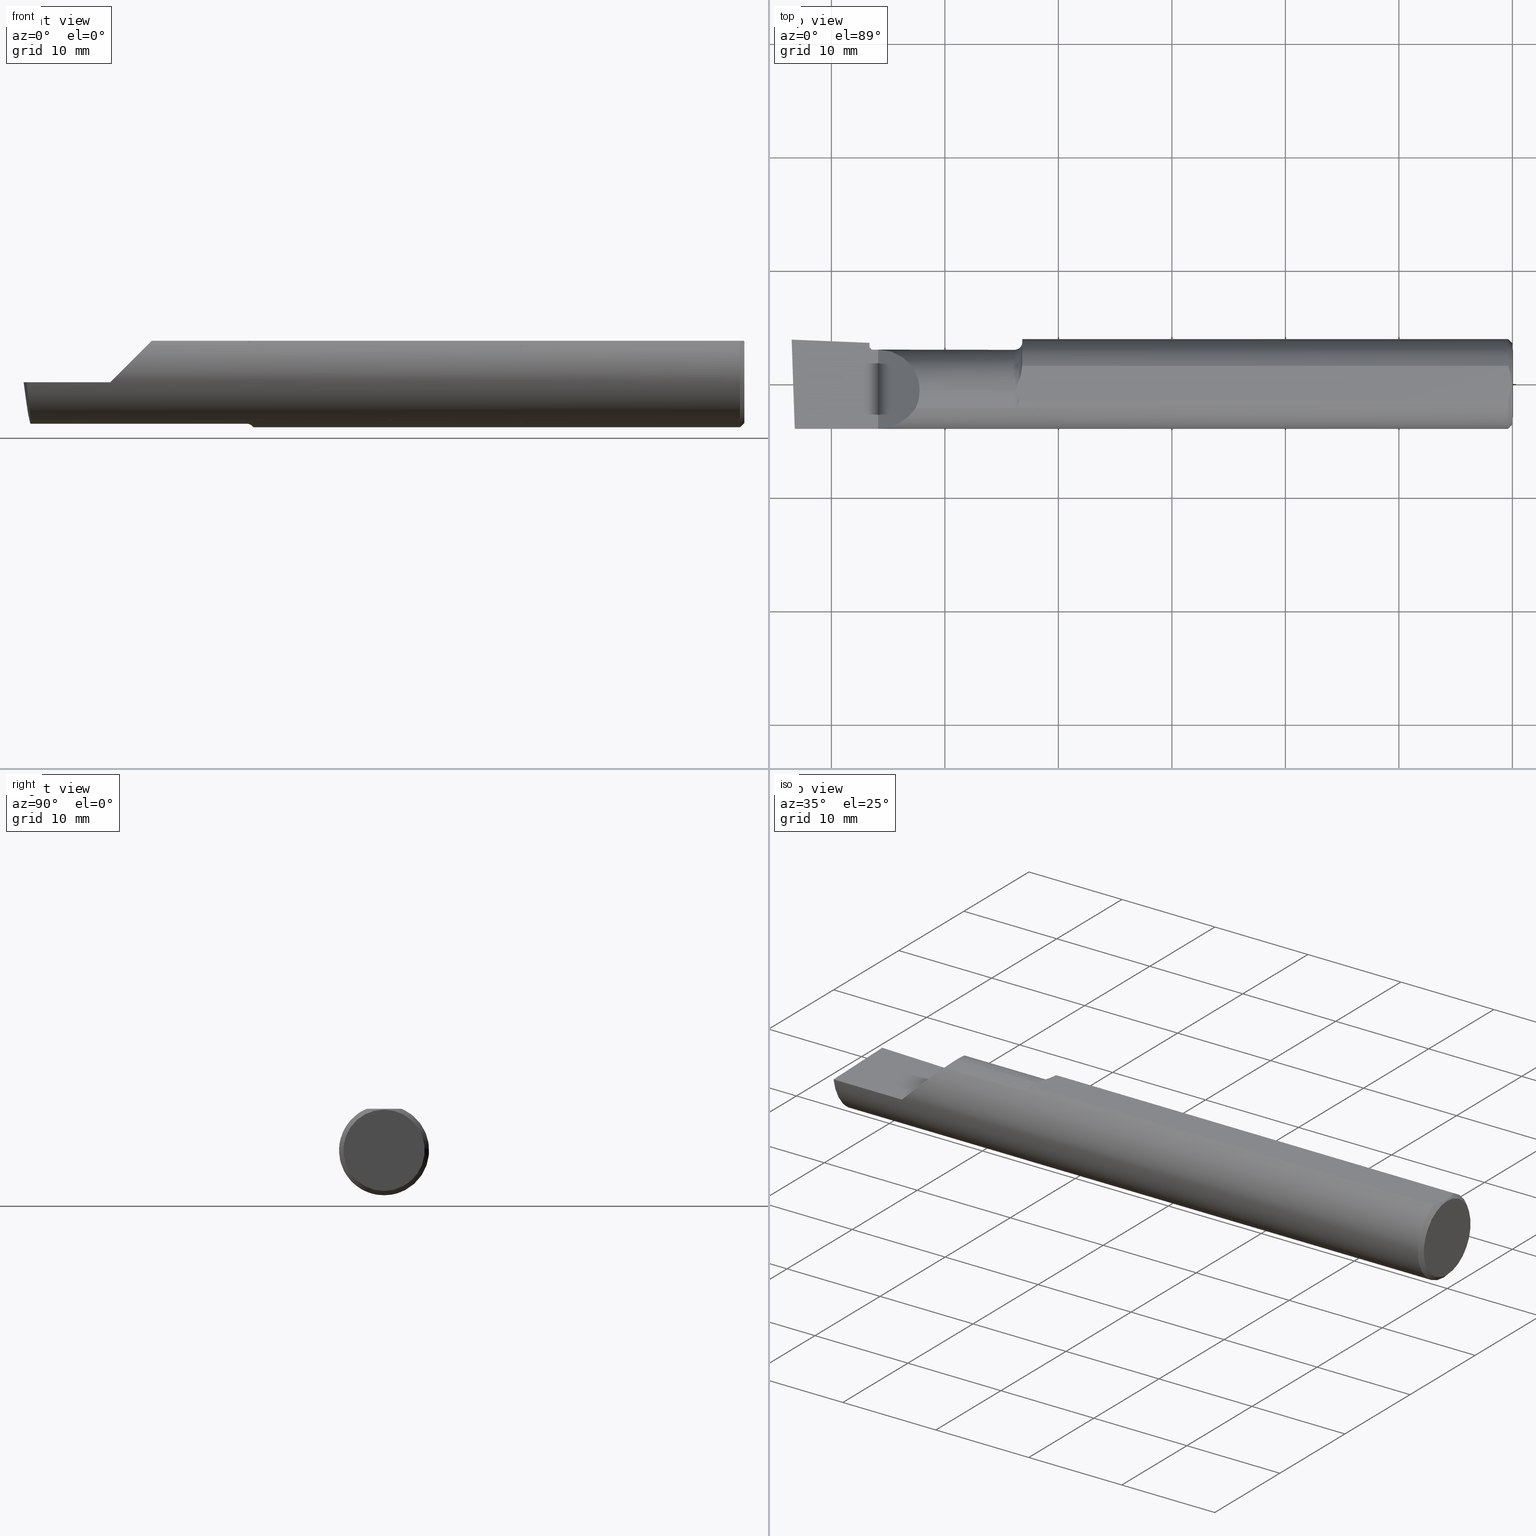
[diagram: canonical four-view strip — front | top / right | iso, engineering-drawing reading convention]
A machine part, canonical four-view strip (front | top / right | iso — engineering-drawing reading convention). The complete STEP part file that produces these views, byte-faithful:
ISO-10303-21;
HEADER;
FILE_DESCRIPTION (( 'STEP AP203' ),
    '1' );
FILE_NAME ('210489-LHBB316L.STEP',
    '2024-09-03T19:17:21',
    ( '' ),
    ( '' ),
    'SwSTEP 2.0',
    'SolidWorks 2024',
    '' );
FILE_SCHEMA (( 'CONFIG_CONTROL_DESIGN' ));
ENDSEC;

DATA;
#1 = DATE_AND_TIME ( #520, #705 ) ;
#2 = CARTESIAN_POINT ( 'NONE',  ( -2.229814999632692363, 0.07017856946061026835, -0.1184930152355837263 ) ) ;
#3 = CARTESIAN_POINT ( 'NONE',  ( -4.695363739110452099E-17, 4.170320745720392440E-32, 0.1411000000000002530 ) ) ;
#4 = VERTEX_POINT ( 'NONE', #36 ) ;
#5 = AXIS2_PLACEMENT_3D ( 'NONE', #95, #143, #653 ) ;
#6 = CARTESIAN_POINT ( 'NONE',  ( -2.229999999999999538, 0.1026580227690539332, -0.08595719412995682374 ) ) ;
#7 = CARTESIAN_POINT ( 'NONE',  ( -1.704862523376329708, -0.02500000000022616076, -0.1540850739039595629 ) ) ;
#8 = CARTESIAN_POINT ( 'NONE',  ( 0.000000000000000000, -0.02500000000000002220, -0.1439000000000001389 ) ) ;
#9 = EDGE_LOOP ( 'NONE', ( #416, #685, #96, #122, #537 ) ) ;
#10 = CARTESIAN_POINT ( 'NONE',  ( -0.01500000000000024925, 0.000000000000000000, -0.1560999999999999888 ) ) ;
#11 = CARTESIAN_POINT ( 'NONE',  ( -2.069528853764518228, -0.08569999999999516893, 0.1304711462354827267 ) ) ;
#12 = PRODUCT_DEFINITION_SHAPE ( 'NONE', 'NONE',  #269 ) ;
#13 = ORIENTED_EDGE ( 'NONE', *, *, #453, .T. ) ;
#14 = ADVANCED_FACE ( 'NONE', ( #506 ), #729, .T. ) ;
#15 = CC_DESIGN_PERSON_AND_ORGANIZATION_ASSIGNMENT ( #45, #41, ( #289 ) ) ;
#16 = CARTESIAN_POINT ( 'NONE',  ( -0.003000000000000204760, 6.421145895685612357E-21, 0.1440999999999999504 ) ) ;
#17 = ORIENTED_EDGE ( 'NONE', *, *, #600, .F. ) ;
#18 = EDGE_CURVE ( 'NONE', #655, #733, #139, .T. ) ;
#19 = DIRECTION ( 'NONE',  ( 0.000000000000000000, 0.000000000000000000, 1.000000000000000000 ) ) ;
#20 = AXIS2_PLACEMENT_3D ( 'NONE', #137, #357, #582 ) ;
#21 = LINE ( 'NONE', #700, #54 ) ;
#22 = ORIENTED_EDGE ( 'NONE', *, *, #450, .F. ) ;
#23 = EDGE_CURVE ( 'NONE', #527, #398, #717, .T. ) ;
#24 = DIRECTION ( 'NONE',  ( 0.000000000000000000, -1.707404996040168702E-16, -1.000000000000000000 ) ) ;
#25 = DIRECTION ( 'NONE',  ( 0.000000000000000000, 0.000000000000000000, 1.000000000000000000 ) ) ;
#26 = ORIENTED_EDGE ( 'NONE', *, *, #743, .T. ) ;
#27 =( BOUNDED_CURVE ( )  B_SPLINE_CURVE ( 3, ( #280, #514, #738, #221 ),
 .UNSPECIFIED., .F., .F. ) 
 B_SPLINE_CURVE_WITH_KNOTS ( ( 4, 4 ),
 ( 6.122674497807371274, 6.558126988897922338 ),
 .UNSPECIFIED. ) 
 CURVE ( )  GEOMETRIC_REPRESENTATION_ITEM ( )  RATIONAL_B_SPLINE_CURVE ( ( 1.000000000000000000, 0.9842607512044747597, 0.9842607512044747597, 1.000000000000000000 ) ) 
 REPRESENTATION_ITEM ( '' )  );
#28 = LINE ( 'NONE', #200, #279 ) ;
#29 = ORIENTED_EDGE ( 'NONE', *, *, #374, .T. ) ;
#30 = LINE ( 'NONE', #507, #392 ) ;
#31 = ORIENTED_EDGE ( 'NONE', *, *, #453, .F. ) ;
#32 = CARTESIAN_POINT ( 'NONE',  ( -1.724999999999999867, -0.02500000000000000486, 0.1689000000000000778 ) ) ;
#33 = EDGE_LOOP ( 'NONE', ( #430, #257, #158, #631, #135 ) ) ;
#34 = PERSON_AND_ORGANIZATION_ROLE ( 'design_owner' ) ;
#35 = CARTESIAN_POINT ( 'NONE',  ( -2.489315288308734164, 0.1256128547571745691, -0.07906752438118763715 ) ) ;
#36 = CARTESIAN_POINT ( 'NONE',  ( -1.724999999999999867, -0.08569999999999909635, -0.1304711462354805340 ) ) ;
#37 = CONICAL_SURFACE ( 'NONE', #97, 0.1410999999999997534, 0.7853981633974471688 ) ;
#38 = CARTESIAN_POINT ( 'NONE',  ( -1.700977043369841013, 0.02442086657637513106, -0.1542995754677715381 ) ) ;
#39 = CARTESIAN_POINT ( 'NONE',  ( -9.678837909573454915E-17, 0.2776584335525523750, -0.1560999999999999888 ) ) ;
#40 = ORIENTED_EDGE ( 'NONE', *, *, #146, .F. ) ;
#41 = PERSON_AND_ORGANIZATION_ROLE ( 'design_supplier' ) ;
#42 = CARTESIAN_POINT ( 'NONE',  ( -2.489266190342419360, -0.1561000000000000165, 3.826894855694925850E-18 ) ) ;
#43 = EDGE_CURVE ( 'NONE', #142, #148, #119, .T. ) ;
#44 = ORIENTED_EDGE ( 'NONE', *, *, #49, .F. ) ;
#45 = PERSON_AND_ORGANIZATION ( #165, #276 ) ;
#46 = LINE ( 'NONE', #679, #307 ) ;
#47 = CARTESIAN_POINT ( 'NONE',  ( -2.227833546180562951, 0.05470044517252301008, -0.1241265917587201367 ) ) ;
#48 = AXIS2_PLACEMENT_3D ( 'NONE', #113, #342, #351 ) ;
#49 = EDGE_CURVE ( 'NONE', #713, #398, #379, .T. ) ;
#50 = AXIS2_PLACEMENT_3D ( 'NONE', #739, #684, #281 ) ;
#51 = COORDINATED_UNIVERSAL_TIME_OFFSET ( 8, 0, .BEHIND. ) ;
#52 = CARTESIAN_POINT ( 'NONE',  ( -1.719201185154609846, -0.03693468910894936313, 0.1440999999999999226 ) ) ;
#53 = CARTESIAN_POINT ( 'NONE',  ( 0.000000000000000000, -0.02500000000000000486, 0.000000000000000000 ) ) ;
#54 = VECTOR ( 'NONE', #364, 39.37007874015748143 ) ;
#55 = CC_DESIGN_APPROVAL ( #338, ( #289 ) ) ;
#56 = CARTESIAN_POINT ( 'NONE',  ( 0.000000000000000000, -0.02500000000000000486, 0.1439000000000001389 ) ) ;
#57 = CARTESIAN_POINT ( 'NONE',  ( -0.008307085287356189701, 0.04068523568973313881, 0.1441000000000000059 ) ) ;
#58 = CARTESIAN_POINT ( 'NONE',  ( -1.700050504025077069, 0.06001999666777736026, 0.1440999999999999504 ) ) ;
#59 = DIRECTION ( 'NONE',  ( 1.000000000000000000, -0.000000000000000000, -0.000000000000000000 ) ) ;
#60 = CARTESIAN_POINT ( 'NONE',  ( -1.703095797791018606, -0.008405471570478818127, -0.1561000000000260235 ) ) ;
#61 = CARTESIAN_POINT ( 'NONE',  ( -2.229814999632692363, 0.07017856946061026835, -0.1184930152355837263 ) ) ;
#62 = FACE_OUTER_BOUND ( 'NONE', #579, .T. ) ;
#63 = DIRECTION ( 'NONE',  ( 0.000000000000000000, 0.000000000000000000, 1.000000000000000000 ) ) ;
#64 = ADVANCED_FACE ( 'NONE', ( #169 ), #515, .T. ) ;
#65 = VERTEX_POINT ( 'NONE', #3 ) ;
#66 = DIRECTION ( 'NONE',  ( 1.000000000000000000, -0.000000000000000000, -0.000000000000000000 ) ) ;
#67 = ADVANCED_FACE ( 'NONE', ( #352 ), #230, .T. ) ;
#68 = CARTESIAN_POINT ( 'NONE',  ( -2.477743596163800799, -0.1305938407426046888, -0.1009826174484544509 ) ) ;
#69 = ORIENTED_EDGE ( 'NONE', *, *, #374, .F. ) ;
#70 = ADVANCED_FACE ( 'NONE', ( #578 ), #681, .T. ) ;
#71 = VECTOR ( 'NONE', #466, 39.37007874015748143 ) ;
#72 = DIRECTION ( 'NONE',  ( 0.000000000000000000, 0.000000000000000000, 1.000000000000000000 ) ) ;
#73 = CARTESIAN_POINT ( 'NONE',  ( -2.056100000000001149, -0.04605394310600462171, 0.1439000000000001389 ) ) ;
#74 = ORIENTED_EDGE ( 'NONE', *, *, #513, .T. ) ;
#75 = DIRECTION ( 'NONE',  ( 1.000000000000000000, -0.000000000000000000, -0.000000000000000000 ) ) ;
#76 = CARTESIAN_POINT ( 'NONE',  ( -2.482667168175673122, -0.1560999999999999888, -0.05371247775559880727 ) ) ;
#77 = AXIS2_PLACEMENT_3D ( 'NONE', #92, #613, #370 ) ;
#78 = ORIENTED_EDGE ( 'NONE', *, *, #243, .F. ) ;
#79 = CALENDAR_DATE ( 2024, 3, 9 ) ;
#80 = EDGE_CURVE ( 'NONE', #131, #334, #188, .T. ) ;
#81 = CARTESIAN_POINT ( 'NONE',  ( -2.484581445594568727, 0.09576735185321454125, -0.1091794601134913889 ) ) ;
#82 = VERTEX_POINT ( 'NONE', #512 ) ;
#83 = CARTESIAN_POINT ( 'NONE',  ( -1.700348850910508025, 0.04224677410306604958, -0.1503974671975660815 ) ) ;
#84 = CARTESIAN_POINT ( 'NONE',  ( -1.716062054560814065, -0.07627963852233772546, -0.1362221433799753467 ) ) ;
#85 = CLOSED_SHELL ( 'NONE', ( #472, #607, #454, #693, #707, #67, #155, #265, #481, #70, #624, #530, #102, #181, #720, #719, #636, #14, #64, #395 ) ) ;
#86 = ORIENTED_EDGE ( 'NONE', *, *, #159, .F. ) ;
#87 = DATE_AND_TIME ( #670, #486 ) ;
#88 = AXIS2_PLACEMENT_3D ( 'NONE', #249, #63, #704 ) ;
#89 = DIRECTION ( 'NONE',  ( 0.000000000000000000, 0.000000000000000000, 1.000000000000000000 ) ) ;
#90 = ORIENTED_EDGE ( 'NONE', *, *, #23, .T. ) ;
#91 = DIMENSIONAL_EXPONENTS ( 1.000000000000000000, 0.000000000000000000, 0.000000000000000000, 0.000000000000000000, 0.000000000000000000, 0.000000000000000000, 0.000000000000000000 ) ;
#92 = CARTESIAN_POINT ( 'NONE',  ( 0.000000000000000000, 0.000000000000000000, 0.000000000000000000 ) ) ;
#93 = CARTESIAN_POINT ( 'NONE',  ( -1.972499999999999698, -0.08569999999999904083, -0.1304711462354805618 ) ) ;
#94 = ORIENTED_EDGE ( 'NONE', *, *, #581, .F. ) ;
#95 = CARTESIAN_POINT ( 'NONE',  ( -2.199999999999999289, 0.1560999999999999888, 3.826894855694925850E-18 ) ) ;
#96 = ORIENTED_EDGE ( 'NONE', *, *, #206, .F. ) ;
#97 = AXIS2_PLACEMENT_3D ( 'NONE', #186, #417, #643 ) ;
#98 = B_SPLINE_CURVE_WITH_KNOTS ( 'NONE', 3,
 ( #130, #415, #529, #429 ),
 .UNSPECIFIED., .F., .F.,
 ( 4, 4 ),
 ( 0.01176971488481076342, 0.01863345644698705117 ),
 .UNSPECIFIED. ) ;
#99 = DIRECTION ( 'NONE',  ( 0.000000000000000000, 0.000000000000000000, 1.000000000000000000 ) ) ;
#100 = DIRECTION ( 'NONE',  ( -1.000000000000000000, 0.000000000000000000, 0.000000000000000000 ) ) ;
#101 = FACE_OUTER_BOUND ( 'NONE', #211, .T. ) ;
#102 = ADVANCED_FACE ( 'NONE', ( #688 ), #407, .F. ) ;
#103 = CARTESIAN_POINT ( 'NONE',  ( -2.229294457104739724, 0.06238674940841056060, -0.1213290058053428794 ) ) ;
#104 = PERSON_AND_ORGANIZATION_ROLE ( 'creator' ) ;
#105 = CARTESIAN_POINT ( 'NONE',  ( -2.500000000000000000, 0.000000000000000000, -0.1560999999999999888 ) ) ;
#106 = CARTESIAN_POINT ( 'NONE',  ( -4.695363739110451482E-17, -2.459287858768264152E-17, 0.000000000000000000 ) ) ;
#107 = VECTOR ( 'NONE', #255, 39.37007874015748143 ) ;
#108 = PERSON_AND_ORGANIZATION ( #165, #276 ) ;
#109 = CARTESIAN_POINT ( 'NONE',  ( -1.699999999999999956, 0.07070000000000060958, 0.1391715488165591041 ) ) ;
#110 = CARTESIAN_POINT ( 'NONE',  ( -1.716324726609743223, -0.07684337455390469196, 0.1359013108991526941 ) ) ;
#111 = CIRCLE ( 'NONE', #150, 0.1439000000000001389 ) ;
#112 = CC_DESIGN_APPROVAL ( #129, ( #269 ) ) ;
#113 = CARTESIAN_POINT ( 'NONE',  ( -2.229999999999999538, 0.1891210000000000946, 0.000000000000000000 ) ) ;
#114 = DIRECTION ( 'NONE',  ( 0.000000000000000000, 0.000000000000000000, 1.000000000000000000 ) ) ;
#115 = LINE ( 'NONE', #588, #428 ) ;
#116 = CARTESIAN_POINT ( 'NONE',  ( -2.229999999999999538, -0.02500000000000000486, 0.000000000000000000 ) ) ;
#117 = EDGE_LOOP ( 'NONE', ( #303, #533, #584, #595 ) ) ;
#118 = DIRECTION ( 'NONE',  ( 0.000000000000000000, 0.000000000000000000, 1.000000000000000000 ) ) ;
#119 = B_SPLINE_CURVE_WITH_KNOTS ( 'NONE', 3,
 ( #635, #397, #57, #452, #677, #571 ),
 .UNSPECIFIED., .F., .F.,
 ( 4, 2, 4 ),
 ( 0.003862504283746397583, 0.004641553971935389461, 0.005420603660124381773 ),
 .UNSPECIFIED. ) ;
#120 = EDGE_CURVE ( 'NONE', #527, #642, #547, .T. ) ;
#121 = PLANE ( 'NONE',  #632 ) ;
#122 = ORIENTED_EDGE ( 'NONE', *, *, #740, .F. ) ;
#123 = EDGE_CURVE ( 'NONE', #710, #306, #741, .T. ) ;
#124 = FACE_OUTER_BOUND ( 'NONE', #523, .T. ) ;
#125 = DIRECTION ( 'NONE',  ( 0.000000000000000000, 0.000000000000000000, 1.000000000000000000 ) ) ;
#126 = EDGE_CURVE ( 'NONE', #65, #187, #516, .T. ) ;
#127 = VERTEX_POINT ( 'NONE', #467 ) ;
#128 = CARTESIAN_POINT ( 'NONE',  ( -0.008316884378888314902, -0.04071872938164906863, 0.1440999999999999226 ) ) ;
#129 = APPROVAL ( #596, 'UNSPECIFIED' ) ;
#130 = CARTESIAN_POINT ( 'NONE',  ( -2.229999999999999538, 0.1425688816766004785, 0.000000000000000000 ) ) ;
#131 = VERTEX_POINT ( 'NONE', #691 ) ;
#132 = DIRECTION ( 'NONE',  ( 1.000000000000000000, -0.000000000000000000, -0.000000000000000000 ) ) ;
#133 = AXIS2_PLACEMENT_3D ( 'NONE', #189, #75, #118 ) ;
#134 = CARTESIAN_POINT ( 'NONE',  ( -0.01500000000000024925, -0.06001999666777732556, 0.1440999999999999781 ) ) ;
#135 = ORIENTED_EDGE ( 'NONE', *, *, #49, .T. ) ;
#136 = EDGE_CURVE ( 'NONE', #362, #642, #251, .T. ) ;
#137 = CARTESIAN_POINT ( 'NONE',  ( -4.695363739110451482E-17, -2.459287858768264152E-17, 0.000000000000000000 ) ) ;
#138 = ORIENTED_EDGE ( 'NONE', *, *, #43, .F. ) ;
#139 = B_SPLINE_CURVE_WITH_KNOTS ( 'NONE', 3,
 ( #674, #638, #220, #110, #459, #337, #174, #630, #518, #746 ),
 .UNSPECIFIED., .F., .F.,
 ( 4, 2, 2, 2, 4 ),
 ( 5.292347910183899821E-07, 0.0004247077115782289282, 0.0006367969499718310368, 0.0007428415691686376205, 0.0008488861883654442043 ),
 .UNSPECIFIED. ) ;
#140 = PLANE ( 'NONE',  #5 ) ;
#141 = CARTESIAN_POINT ( 'NONE',  ( -1.706230440715366337, -0.03646003586407838004, -0.1522257056384943574 ) ) ;
#142 = VERTEX_POINT ( 'NONE', #419 ) ;
#143 = DIRECTION ( 'NONE',  ( 0.7071067811865515695, 0.000000000000000000, -0.7071067811865434649 ) ) ;
#144 = VECTOR ( 'NONE', #335, 39.37007874015748143 ) ;
#145 = CARTESIAN_POINT ( 'NONE',  ( -1.707963511987623750, -0.04781653154435649977, -0.1490354188630819143 ) ) ;
#146 = EDGE_CURVE ( 'NONE', #187, #65, #420, .T. ) ;
#147 = CC_DESIGN_PERSON_AND_ORGANIZATION_ASSIGNMENT ( #172, #223, ( #669 ) ) ;
#148 = VERTEX_POINT ( 'NONE', #16 ) ;
#149 =( NAMED_UNIT ( * ) PLANE_ANGLE_UNIT ( ) SI_UNIT ( $, .RADIAN. ) );
#150 = AXIS2_PLACEMENT_3D ( 'NONE', #597, #644, #371 ) ;
#151 = CARTESIAN_POINT ( 'NONE',  ( -1.724999999999999867, -0.02500000000000000486, 0.000000000000000000 ) ) ;
#152 = ORIENTED_EDGE ( 'NONE', *, *, #513, .F. ) ;
#153 = LOCAL_TIME ( 12, 17, 21.00000000000000000, #457 ) ;
#154 = CARTESIAN_POINT ( 'NONE',  ( -2.229999999999999538, 0.1289000000000001256, 0.000000000000000000 ) ) ;
#155 = ADVANCED_FACE ( 'NONE', ( #305 ), #536, .T. ) ;
#156 = ORIENTED_EDGE ( 'NONE', *, *, #629, .F. ) ;
#157 = CARTESIAN_POINT ( 'NONE',  ( -2.099017382551543243, -0.1305938407426031900, 0.1009826174484572542 ) ) ;
#158 = ORIENTED_EDGE ( 'NONE', *, *, #136, .F. ) ;
#159 = EDGE_CURVE ( 'NONE', #427, #372, #359, .T. ) ;
#160 = LINE ( 'NONE', #285, #437 ) ;
#161 = DIRECTION ( 'NONE',  ( 1.000000000000000000, -0.000000000000000000, -0.000000000000000000 ) ) ;
#162 = B_SPLINE_CURVE_WITH_KNOTS ( 'NONE', 3,
 ( #300, #361, #426, #641 ),
 .UNSPECIFIED., .F., .F.,
 ( 4, 4 ),
 ( 0.0005609392357388221168, 0.007068866004979952253 ),
 .UNSPECIFIED. ) ;
#163 = PLANE ( 'NONE',  #48 ) ;
#164 = CARTESIAN_POINT ( 'NONE',  ( -1.699999999999999956, 0.000000000000000000, 0.000000000000000000 ) ) ;
#165 = PERSON ( 'UNSPECIFIED', 'UNSPECIFIED', 'UNSPECIFIED', ('UNSPECIFIED'), ('UNSPECIFIED'), ('UNSPECIFIED') ) ;
#166 = ORIENTED_EDGE ( 'NONE', *, *, #319, .T. ) ;
#167 = DATE_TIME_ROLE ( 'classification_date' ) ;
#168 = DIRECTION ( 'NONE',  ( 0.000000000000000000, 0.000000000000000000, -1.000000000000000000 ) ) ;
#169 = FACE_OUTER_BOUND ( 'NONE', #546, .T. ) ;
#170 = CIRCLE ( 'NONE', #698, 0.1439000000000001389 ) ;
#171 = ORIENTED_EDGE ( 'NONE', *, *, #740, .T. ) ;
#172 = PERSON_AND_ORGANIZATION ( #165, #276 ) ;
#173 = CYLINDRICAL_SURFACE ( 'NONE', #663, 0.1560999999999999888 ) ;
#174 = CARTESIAN_POINT ( 'NONE',  ( -1.720308733175471838, -0.08325729668116084448, 0.1320471792325039750 ) ) ;
#175 = MANIFOLD_SOLID_BREP ( 'Cut-Extrude1', #85 ) ;
#176 = ORIENTED_EDGE ( 'NONE', *, *, #126, .F. ) ;
#177 = LOCAL_TIME ( 12, 17, 21.00000000000000000, #340 ) ;
#178 = CARTESIAN_POINT ( 'NONE',  ( -2.056000000000000050, -0.1560999999999999888, 3.826894855694925850E-18 ) ) ;
#179 = DIRECTION ( 'NONE',  ( 1.000000000000000000, -0.000000000000000000, -0.000000000000000000 ) ) ;
#180 = ORIENTED_EDGE ( 'NONE', *, *, #583, .T. ) ;
#181 = ADVANCED_FACE ( 'NONE', ( #368 ), #423, .T. ) ;
#182 = CARTESIAN_POINT ( 'NONE',  ( -2.199999999999999289, -0.1560999999999999888, 3.826894855694925850E-18 ) ) ;
#183 = CARTESIAN_POINT ( 'NONE',  ( -2.476130359589496788, -0.02500000000000002220, -0.1439000000000001389 ) ) ;
#184 = ORIENTED_EDGE ( 'NONE', *, *, #185, .F. ) ;
#185 = EDGE_CURVE ( 'NONE', #227, #4, #111, .T. ) ;
#186 = CARTESIAN_POINT ( 'NONE',  ( 0.000000000000000000, 0.000000000000000000, 0.000000000000000000 ) ) ;
#187 = VERTEX_POINT ( 'NONE', #594 ) ;
#188 = CIRCLE ( 'NONE', #443, 0.1560999999999999888 ) ;
#189 = CARTESIAN_POINT ( 'NONE',  ( -1.724999999999999867, -0.02500000000000000486, 0.000000000000000000 ) ) ;
#190 = ORIENTED_EDGE ( 'NONE', *, *, #604, .T. ) ;
#191 = CARTESIAN_POINT ( 'NONE',  ( -1.702458313762935216, 4.839648990909927173E-13, -0.1560999999999999888 ) ) ;
#192 = CARTESIAN_POINT ( 'NONE',  ( -1.724999999999999867, -0.02500000000000000486, 0.000000000000000000 ) ) ;
#193 = ORIENTED_EDGE ( 'NONE', *, *, #336, .T. ) ;
#194 = DIRECTION ( 'NONE',  ( 1.000000000000000000, 0.000000000000000000, 0.000000000000000000 ) ) ;
#195 = AXIS2_PLACEMENT_3D ( 'NONE', #266, #555, #273 ) ;
#196 = CARTESIAN_POINT ( 'NONE',  ( -1.722162220462625237, -0.08489276752862805198, -0.1310023188550722140 ) ) ;
#197 = ORIENTED_EDGE ( 'NONE', *, *, #80, .T. ) ;
#198 = COORDINATED_UNIVERSAL_TIME_OFFSET ( 8, 0, .BEHIND. ) ;
#199 = B_SPLINE_CURVE_WITH_KNOTS ( 'NONE', 3,
 ( #545, #491, #196, #654, #662, #441, #84, #494, #375, #145, #141, #561 ),
 .UNSPECIFIED., .F., .F.,
 ( 4, 2, 2, 2, 2, 4 ),
 ( 1.966861314629960346E-07, 0.0001139043861855430702, 0.0002276120862396231379, 0.0004550274863477822974, 0.0009098582865640994239, 0.001819519886996738773 ),
 .UNSPECIFIED. ) ;
#200 = CARTESIAN_POINT ( 'NONE',  ( 0.000000000000000000, 1.727976633596912104E-17, -0.1410999999999997534 ) ) ;
#201 = ORIENTED_EDGE ( 'NONE', *, *, #311, .T. ) ;
#202 = EDGE_CURVE ( 'NONE', #733, #433, #541, .T. ) ;
#203 = CC_DESIGN_PERSON_AND_ORGANIZATION_ASSIGNMENT ( #346, #104, ( #289 ) ) ;
#204 = CARTESIAN_POINT ( 'NONE',  ( -2.476713598110543035, -0.008170903630063742693, -0.1439000000000001389 ) ) ;
#205 = ORIENTED_EDGE ( 'NONE', *, *, #242, .T. ) ;
#206 = EDGE_CURVE ( 'NONE', #376, #648, #98, .T. ) ;
#207 = CARTESIAN_POINT ( 'NONE',  ( -1.724999999999999867, -0.08569999999999887430, 0.1304711462354806450 ) ) ;
#208 = AXIS2_PLACEMENT_3D ( 'NONE', #291, #745, #623 ) ;
#209 = EDGE_CURVE ( 'NONE', #334, #131, #572, .T. ) ;
#210 = LINE ( 'NONE', #93, #312 ) ;
#211 = EDGE_LOOP ( 'NONE', ( #485, #618, #236, #510, #22, #489, #562, #667 ) ) ;
#212 = DATE_AND_TIME ( #79, #508 ) ;
#213 = VECTOR ( 'NONE', #239, 39.37007874015748143 ) ;
#214 = DIRECTION ( 'NONE',  ( -1.000000000000000000, -1.742939658942782065E-16, 0.000000000000000000 ) ) ;
#215 = CARTESIAN_POINT ( 'NONE',  ( -1.699999999999999956, 0.1439000000000000556, 0.000000000000000000 ) ) ;
#216 = CARTESIAN_POINT ( 'NONE',  ( -1.724999999999999867, -0.02500000000000000486, 0.1439000000000001389 ) ) ;
#217 = DIRECTION ( 'NONE',  ( 0.000000000000000000, 0.000000000000000000, -1.000000000000000000 ) ) ;
#218 = APPROVAL_STATUS ( 'not_yet_approved' ) ;
#219 = CARTESIAN_POINT ( 'NONE',  ( -2.499553225608604823, 0.1407279727905360600, 3.826894855694925850E-18 ) ) ;
#220 = CARTESIAN_POINT ( 'NONE',  ( -1.713486186723763405, -0.06993940022577664617, 0.1396536156489263103 ) ) ;
#221 = CARTESIAN_POINT ( 'NONE',  ( -2.476130359589496788, -0.02500000000000002220, -0.1439000000000001389 ) ) ;
#222 = CARTESIAN_POINT ( 'NONE',  ( -2.222129735053914867, 0.03180793362839330618, -0.1324587845483786164 ) ) ;
#223 = PERSON_AND_ORGANIZATION_ROLE ( 'classification_officer' ) ;
#224 = CARTESIAN_POINT ( 'NONE',  ( -1.721844053232386873, -0.02136326841098498339, 0.1440999999999999781 ) ) ;
#225 = APPLICATION_CONTEXT ( 'configuration controlled 3d designs of mechanical parts and assemblies' ) ;
#226 = CARTESIAN_POINT ( 'NONE',  ( -2.225157097429441677, 0.04322541840385416001, -0.1283031599399233891 ) ) ;
#227 = VERTEX_POINT ( 'NONE', #309 ) ;
#228 = SECURITY_CLASSIFICATION_LEVEL ( 'unclassified' ) ;
#229 = CARTESIAN_POINT ( 'NONE',  ( -1.718418672230967115, -0.01083899323585547220, 0.1440999999999999504 ) ) ;
#230 = CYLINDRICAL_SURFACE ( 'NONE', #609, 0.1560999999999999888 ) ;
#231 = ORIENTED_EDGE ( 'NONE', *, *, #480, .F. ) ;
#232 = TOROIDAL_SURFACE ( 'NONE', #133, 0.1689000000000000778, 0.02499999999999993894 ) ;
#233 =( BOUNDED_CURVE ( )  B_SPLINE_CURVE ( 3, ( #435, #157, #551, #388 ),
 .UNSPECIFIED., .F., .F. ) 
 B_SPLINE_CURVE_WITH_KNOTS ( ( 4, 4 ),
 ( 0.5811757715714180872, 1.570796326794896558 ),
 .UNSPECIFIED. ) 
 CURVE ( )  GEOMETRIC_REPRESENTATION_ITEM ( )  RATIONAL_B_SPLINE_CURVE ( ( 1.000000000000000000, 0.9200392120919920202, 0.9200392120919920202, 1.000000000000000000 ) ) 
 REPRESENTATION_ITEM ( '' )  );
#234 = CARTESIAN_POINT ( 'NONE',  ( -1.721036826405247133, -0.03107590170041930888, 0.1441000000000000059 ) ) ;
#235 = DIRECTION ( 'NONE',  ( 1.742939658942782065E-16, -1.000000000000000000, 0.000000000000000000 ) ) ;
#236 = ORIENTED_EDGE ( 'NONE', *, *, #418, .F. ) ;
#237 = B_SPLINE_CURVE_WITH_KNOTS ( 'NONE', 3,
 ( #715, #658, #267, #500, #724, #524, #229, #455, #224, #619 ),
 .UNSPECIFIED., .F., .F.,
 ( 4, 2, 2, 2, 4 ),
 ( 0.01301670781631844402, 0.01412932456335744096, 0.01468563293687693942, 0.01496378712363669213, 0.01524194131039644483 ),
 .UNSPECIFIED. ) ;
#238 = CARTESIAN_POINT ( 'NONE',  ( 0.000000000000000000, -0.02500000000000000486, 0.000000000000000000 ) ) ;
#239 = DIRECTION ( 'NONE',  ( 1.000000000000000000, -0.000000000000000000, -0.000000000000000000 ) ) ;
#240 = ORIENTED_EDGE ( 'NONE', *, *, #345, .F. ) ;
#241 = B_SPLINE_CURVE_WITH_KNOTS ( 'NONE', 3,
 ( #353, #474, #593, #128, #576, #363 ),
 .UNSPECIFIED., .F., .F.,
 ( 4, 2, 4 ),
 ( 0.005420603660124381773, 0.006200393792043773673, 0.006980183923963165574 ),
 .UNSPECIFIED. ) ;
#242 = EDGE_CURVE ( 'NONE', #412, #713, #21, .T. ) ;
#243 = EDGE_CURVE ( 'NONE', #527, #436, #162, .T. ) ;
#244 = DIRECTION ( 'NONE',  ( -0.7071067811865483499, 0.000000000000000000, 0.7071067811865467956 ) ) ;
#245 = CARTESIAN_POINT ( 'NONE',  ( -1.699999999999999956, -0.02500000000000000486, 0.000000000000000000 ) ) ;
#246 = ORIENTED_EDGE ( 'NONE', *, *, #564, .F. ) ;
#247 = TOROIDAL_SURFACE ( 'NONE', #208, 0.1689000000000000778, 0.02499999999999993894 ) ;
#248 = CARTESIAN_POINT ( 'NONE',  ( -1.710843495424060334, -0.06001999666777307202, 0.1440999999999999504 ) ) ;
#249 = CARTESIAN_POINT ( 'NONE',  ( -2.056000000000000050, 0.1560999999999999888, 3.826894855694925850E-18 ) ) ;
#250 = ORIENTED_EDGE ( 'NONE', *, *, #283, .F. ) ;
#251 = CIRCLE ( 'NONE', #286, 0.1539000000000001200 ) ;
#252 = DIRECTION ( 'NONE',  ( -0.000000000000000000, -0.000000000000000000, -1.000000000000000000 ) ) ;
#253 = DIRECTION ( 'NONE',  ( 0.000000000000000000, 0.000000000000000000, 1.000000000000000000 ) ) ;
#254 = ORIENTED_EDGE ( 'NONE', *, *, #686, .T. ) ;
#255 = DIRECTION ( 'NONE',  ( 1.000000000000000000, -0.000000000000000000, -0.000000000000000000 ) ) ;
#256 = DIRECTION ( 'NONE',  ( -1.000000000000000000, 0.000000000000000000, 0.000000000000000000 ) ) ;
#257 = ORIENTED_EDGE ( 'NONE', *, *, #120, .T. ) ;
#258 = AXIS2_PLACEMENT_3D ( 'NONE', #313, #528, #580 ) ;
#259 = CARTESIAN_POINT ( 'NONE',  ( -2.056100000000001149, -0.02500000000000000486, 0.1439000000000001389 ) ) ;
#260 = ORIENTED_EDGE ( 'NONE', *, *, #600, .T. ) ;
#261 = EDGE_CURVE ( 'NONE', #275, #227, #650, .T. ) ;
#262 = PERSON_AND_ORGANIZATION ( #165, #276 ) ;
#263 = FACE_OUTER_BOUND ( 'NONE', #706, .T. ) ;
#264 = ORIENTED_EDGE ( 'NONE', *, *, #418, .T. ) ;
#265 = ADVANCED_FACE ( 'NONE', ( #696 ), #121, .F. ) ;
#266 = CARTESIAN_POINT ( 'NONE',  ( -2.229999999999999538, -0.05609999999999996934, 0.04000000000000000083 ) ) ;
#267 = CARTESIAN_POINT ( 'NONE',  ( -1.704082834115631773, 0.03088512097720286578, 0.1440999999999999504 ) ) ;
#268 = VERTEX_POINT ( 'NONE', #488 ) ;
#269 = PRODUCT_DEFINITION ( 'UNKNOWN', '', #289, #440 ) ;
#270 = AXIS2_PLACEMENT_3D ( 'NONE', #695, #132, #72 ) ;
#271 = CARTESIAN_POINT ( 'NONE',  ( -2.115705331625488572, 0.1189000000000001445, 0.08429466837451166095 ) ) ;
#272 = ORIENTED_EDGE ( 'NONE', *, *, #503, .T. ) ;
#273 = DIRECTION ( 'NONE',  ( 0.000000000000000000, 0.000000000000000000, -1.000000000000000000 ) ) ;
#274 = CARTESIAN_POINT ( 'NONE',  ( -2.476130359589496788, -0.02500000000000002220, -0.1439000000000001389 ) ) ;
#275 = VERTEX_POINT ( 'NONE', #183 ) ;
#276 = ORGANIZATION ( 'UNSPECIFIED', 'UNSPECIFIED', '' ) ;
#277 = CARTESIAN_POINT ( 'NONE',  ( -1.721844053232375549, -0.02804753169359755494, 0.1440999999999999781 ) ) ;
#278 = ORIENTED_EDGE ( 'NONE', *, *, #261, .F. ) ;
#279 = VECTOR ( 'NONE', #556, 39.37007874015748143 ) ;
#280 = CARTESIAN_POINT ( 'NONE',  ( -2.475676552398977215, -0.08569999999999904083, -0.1304711462354805618 ) ) ;
#281 = DIRECTION ( 'NONE',  ( 0.000000000000000000, 0.000000000000000000, 1.000000000000000000 ) ) ;
#282 = AXIS2_PLACEMENT_3D ( 'NONE', #215, #100, #217 ) ;
#283 = EDGE_CURVE ( 'NONE', #498, #82, #591, .T. ) ;
#284 = APPROVAL_STATUS ( 'not_yet_approved' ) ;
#285 = CARTESIAN_POINT ( 'NONE',  ( -2.500000000000000000, 0.06001999666777736719, 0.1440999999999999504 ) ) ;
#286 = AXIS2_PLACEMENT_3D ( 'NONE', #116, #483, #125 ) ;
#287 = CARTESIAN_POINT ( 'NONE',  ( -2.219999999999999751, -0.02500000000000000486, 0.000000000000000000 ) ) ;
#288 = ORIENTED_EDGE ( 'NONE', *, *, #18, .T. ) ;
#289 = PRODUCT_DEFINITION_FORMATION_WITH_SPECIFIED_SOURCE ( 'ANY', '', #348, .NOT_KNOWN. ) ;
#290 = PERSON_AND_ORGANIZATION ( #165, #276 ) ;
#291 = CARTESIAN_POINT ( 'NONE',  ( -1.724999999999999867, -0.02500000000000000486, 0.000000000000000000 ) ) ;
#292 = CARTESIAN_POINT ( 'NONE',  ( -2.500000000000000000, 0.000000000000000000, 0.000000000000000000 ) ) ;
#293 = ORIENTED_EDGE ( 'NONE', *, *, #639, .T. ) ;
#294 = DATE_AND_TIME ( #737, #177 ) ;
#295 = CARTESIAN_POINT ( 'NONE',  ( -1.721844053232376881, -0.02500000000003146580, 0.1440999999999999504 ) ) ;
#296 = DIRECTION ( 'NONE',  ( 0.000000000000000000, 0.000000000000000000, 1.000000000000000000 ) ) ;
#297 = ORIENTED_EDGE ( 'NONE', *, *, #242, .F. ) ;
#298 = AXIS2_PLACEMENT_3D ( 'NONE', #238, #367, #414 ) ;
#299 = DIRECTION ( 'NONE',  ( 0.000000000000000000, 1.000000000000000000, 0.000000000000000000 ) ) ;
#300 = CARTESIAN_POINT ( 'NONE',  ( -2.229814999632692363, 0.07017856946061026835, -0.1184930152355837263 ) ) ;
#301 = CYLINDRICAL_SURFACE ( 'NONE', #493, 0.1439000000000001389 ) ;
#302 = DIRECTION ( 'NONE',  ( -1.000000000000000000, 0.000000000000000000, 0.000000000000000000 ) ) ;
#303 = ORIENTED_EDGE ( 'NONE', *, *, #581, .T. ) ;
#304 = FACE_OUTER_BOUND ( 'NONE', #549, .T. ) ;
#305 = FACE_OUTER_BOUND ( 'NONE', #645, .T. ) ;
#306 = VERTEX_POINT ( 'NONE', #134 ) ;
#307 = VECTOR ( 'NONE', #570, 39.37007874015748143 ) ;
#308 = CARTESIAN_POINT ( 'NONE',  ( -1.703876643924216117, -0.01674057265308589657, -0.1554251497364122214 ) ) ;
#309 = CARTESIAN_POINT ( 'NONE',  ( -1.724999999999999867, -0.02500000000000002220, -0.1439000000000001389 ) ) ;
#310 = ORIENTED_EDGE ( 'NONE', *, *, #324, .T. ) ;
#311 = EDGE_CURVE ( 'NONE', #4, #449, #199, .T. ) ;
#312 = VECTOR ( 'NONE', #328, 39.37007874015748143 ) ;
#313 = CARTESIAN_POINT ( 'NONE',  ( -0.01500000000000024925, 0.000000000000000000, 0.000000000000000000 ) ) ;
#314 = CC_DESIGN_APPROVAL ( #626, ( #669 ) ) ;
#315 =( BOUNDED_CURVE ( )  B_SPLINE_CURVE ( 3, ( #274, #204, #446, #509 ),
 .UNSPECIFIED., .F., .F. ) 
 B_SPLINE_CURVE_WITH_KNOTS ( ( 4, 4 ),
 ( 0.2749416817183363837, 0.6240075321171965061 ),
 .UNSPECIFIED. ) 
 CURVE ( )  GEOMETRIC_REPRESENTATION_ITEM ( )  RATIONAL_B_SPLINE_CURVE ( ( 1.000000000000000000, 0.9898718353414723836, 0.9898718353414723836, 1.000000000000000000 ) ) 
 REPRESENTATION_ITEM ( '' )  );
#316 = CARTESIAN_POINT ( 'NONE',  ( -2.475676552398977215, -0.08569999999999904083, -0.1304711462354805618 ) ) ;
#317 = ORIENTED_EDGE ( 'NONE', *, *, #18, .F. ) ;
#318 = CARTESIAN_POINT ( 'NONE',  ( -2.069528853764518228, -0.08569999999999516893, 0.1304711462354827267 ) ) ;
#319 = EDGE_CURVE ( 'NONE', #82, #4, #210, .T. ) ;
#320 = EDGE_LOOP ( 'NONE', ( #40, #29, #389, #421, #465 ) ) ;
#321 = MECHANICAL_CONTEXT ( 'NONE', #225, 'mechanical' ) ;
#322 = CARTESIAN_POINT ( 'NONE',  ( -2.500000000000000000, 0.1536194554637218546, 0.000000000000000000 ) ) ;
#323 = ORIENTED_EDGE ( 'NONE', *, *, #480, .T. ) ;
#324 = EDGE_CURVE ( 'NONE', #733, #372, #380, .T. ) ;
#325 = CARTESIAN_POINT ( 'NONE',  ( -1.700730260234562419, 0.03041887409375968257, -0.1532281963622442178 ) ) ;
#326 = CARTESIAN_POINT ( 'NONE',  ( -2.478902233428061486, 0.02421669862456291358, -0.1352217681310924902 ) ) ;
#327 = ORIENTED_EDGE ( 'NONE', *, *, #583, .F. ) ;
#328 = DIRECTION ( 'NONE',  ( 1.000000000000000000, -0.000000000000000000, -0.000000000000000000 ) ) ;
#329 = ORIENTED_EDGE ( 'NONE', *, *, #209, .F. ) ;
#330 = LENGTH_MEASURE_WITH_UNIT ( LENGTH_MEASURE( 0.02539999999999999897 ), #439 );
#331 = CARTESIAN_POINT ( 'NONE',  ( -2.229999999999999538, 0.1425688816766004785, 0.000000000000000000 ) ) ;
#332 = ORIENTED_EDGE ( 'NONE', *, *, #450, .T. ) ;
#333 = FACE_OUTER_BOUND ( 'NONE', #612, .T. ) ;
#334 = VERTEX_POINT ( 'NONE', #728 ) ;
#335 = DIRECTION ( 'NONE',  ( 0.03463576215158579996, -0.9994000019912840926, 0.000000000000000000 ) ) ;
#336 = EDGE_CURVE ( 'NONE', #412, #427, #413, .T. ) ;
#337 = CARTESIAN_POINT ( 'NONE',  ( -1.719508261956889772, -0.08224208440130439945, 0.1326837206089799548 ) ) ;
#338 = APPROVAL ( #218, 'UNSPECIFIED' ) ;
#339 = ADVANCED_BREP_SHAPE_REPRESENTATION ( '210489-LHBB316L', ( #175, #77 ), #384 ) ;
#340 = COORDINATED_UNIVERSAL_TIME_OFFSET ( 8, 0, .BEHIND. ) ;
#341 = VECTOR ( 'NONE', #406, 39.37007874015748143 ) ;
#342 = DIRECTION ( 'NONE',  ( 1.000000000000000000, 0.000000000000000000, -0.000000000000000000 ) ) ;
#343 = EDGE_CURVE ( 'NONE', #436, #648, #718, .T. ) ;
#344 = DIRECTION ( 'NONE',  ( 1.000000000000000000, 1.742939658942782065E-16, 0.000000000000000000 ) ) ;
#345 = EDGE_CURVE ( 'NONE', #372, #652, #233, .T. ) ;
#346 = PERSON_AND_ORGANIZATION ( #165, #276 ) ;
#347 = CARTESIAN_POINT ( 'NONE',  ( -1.700016018626790748, 0.06364538733738628329, 0.1425899657466627168 ) ) ;
#348 = PRODUCT ( '210489-LHBB316L', '210489-LHBB316L', '', ( #321 ) ) ;
#349 = AXIS2_PLACEMENT_3D ( 'NONE', #106, #344, #235 ) ;
#350 = CARTESIAN_POINT ( 'NONE',  ( -2.224174734775641760, 0.03941084190547441274, -0.1296915522416650091 ) ) ;
#351 = DIRECTION ( 'NONE',  ( 0.000000000000000000, 0.000000000000000000, 1.000000000000000000 ) ) ;
#352 = FACE_OUTER_BOUND ( 'NONE', #355, .T. ) ;
#353 = CARTESIAN_POINT ( 'NONE',  ( -0.003000000000000204760, 6.421145895685612357E-21, 0.1440999999999999504 ) ) ;
#354 = CARTESIAN_POINT ( 'NONE',  ( -2.219999999999999751, 0.02421669862456291358, -0.1352217681310924902 ) ) ;
#355 = EDGE_LOOP ( 'NONE', ( #201, #254, #272, #692, #180, #288, #310, #552, #13, #664, #166 ) ) ;
#356 = DIRECTION ( 'NONE',  ( 0.000000000000000000, 1.000000000000000000, 0.000000000000000000 ) ) ;
#357 = DIRECTION ( 'NONE',  ( 1.000000000000000000, 1.742939658942782065E-16, 0.000000000000000000 ) ) ;
#358 = EDGE_LOOP ( 'NONE', ( #565, #171, #468 ) ) ;
#359 =( BOUNDED_CURVE ( )  B_SPLINE_CURVE ( 3, ( #532, #73, #712, #11 ),
 .UNSPECIFIED., .F., .F. ) 
 B_SPLINE_CURVE_WITH_KNOTS ( ( 4, 4 ),
 ( 0.000000000000000000, 0.4354524910905208102 ),
 .UNSPECIFIED. ) 
 CURVE ( )  GEOMETRIC_REPRESENTATION_ITEM ( )  RATIONAL_B_SPLINE_CURVE ( ( 1.000000000000000000, 0.9842607512044769802, 0.9842607512044769802, 1.000000000000000000 ) ) 
 REPRESENTATION_ITEM ( '' )  );
#360 = LINE ( 'NONE', #711, #366 ) ;
#361 = CARTESIAN_POINT ( 'NONE',  ( -2.314562659517192422, 0.08023483548401062759, -0.1148328337352035183 ) ) ;
#362 = VERTEX_POINT ( 'NONE', #154 ) ;
#363 = CARTESIAN_POINT ( 'NONE',  ( -0.01500000000000024925, -0.06001999666777732556, 0.1440999999999999781 ) ) ;
#364 = DIRECTION ( 'NONE',  ( -1.000000000000000000, 0.000000000000000000, 0.000000000000000000 ) ) ;
#365 = ORIENTED_EDGE ( 'NONE', *, *, #324, .F. ) ;
#366 = VECTOR ( 'NONE', #244, 39.37007874015748143 ) ;
#367 = DIRECTION ( 'NONE',  ( 1.000000000000000000, -0.000000000000000000, -0.000000000000000000 ) ) ;
#368 = FACE_OUTER_BOUND ( 'NONE', #722, .T. ) ;
#369 = EDGE_LOOP ( 'NONE', ( #17, #747, #365, #606 ) ) ;
#370 = DIRECTION ( 'NONE',  ( 1.000000000000000000, 0.000000000000000000, 0.000000000000000000 ) ) ;
#371 = DIRECTION ( 'NONE',  ( 0.000000000000000000, 0.000000000000000000, 1.000000000000000000 ) ) ;
#372 = VERTEX_POINT ( 'NONE', #318 ) ;
#373 = APPROVAL_DATE_TIME ( #212, #129 ) ;
#374 = EDGE_CURVE ( 'NONE', #187, #710, #28, .T. ) ;
#375 = CARTESIAN_POINT ( 'NONE',  ( -1.711707069840809448, -0.06372296352525391727, -0.1426158673174761915 ) ) ;
#376 = VERTEX_POINT ( 'NONE', #331 ) ;
#377 = CIRCLE ( 'NONE', #475, 0.02499999999999993894 ) ;
#378 =( NAMED_UNIT ( * ) SI_UNIT ( $, .STERADIAN. ) SOLID_ANGLE_UNIT ( ) );
#379 = CIRCLE ( 'NONE', #50, 0.1439000000000001389 ) ;
#380 = LINE ( 'NONE', #548, #694 ) ;
#381 = ORIENTED_EDGE ( 'NONE', *, *, #202, .F. ) ;
#382 = AXIS2_PLACEMENT_3D ( 'NONE', #287, #59, #620 ) ;
#383 = APPLICATION_CONTEXT ( 'configuration controlled 3d designs of mechanical parts and assemblies' ) ;
#384 =( GEOMETRIC_REPRESENTATION_CONTEXT ( 3 ) GLOBAL_UNCERTAINTY_ASSIGNED_CONTEXT ( ( #723 ) ) GLOBAL_UNIT_ASSIGNED_CONTEXT ( ( #499, #149, #378 ) ) REPRESENTATION_CONTEXT ( 'NONE', 'WORKASPACE' ) );
#385 = CARTESIAN_POINT ( 'NONE',  ( -1.704862523376329708, -0.02500000000022616076, -0.1540850739039595629 ) ) ;
#386 = ORIENTED_EDGE ( 'NONE', *, *, #80, .F. ) ;
#387 = DATE_TIME_ROLE ( 'creation_date' ) ;
#388 = CARTESIAN_POINT ( 'NONE',  ( -2.199999999999999289, -0.1560999999999999888, 3.826894855694925850E-18 ) ) ;
#389 = ORIENTED_EDGE ( 'NONE', *, *, #656, .F. ) ;
#390 = CALENDAR_DATE ( 2024, 3, 9 ) ;
#391 = DIRECTION ( 'NONE',  ( 0.000000000000000000, 0.000000000000000000, 1.000000000000000000 ) ) ;
#392 = VECTOR ( 'NONE', #194, 39.37007874015748143 ) ;
#393 = ORIENTED_EDGE ( 'NONE', *, *, #629, .T. ) ;
#394 = APPROVAL_DATE_TIME ( #569, #626 ) ;
#395 = ADVANCED_FACE ( 'NONE', ( #263 ), #497, .F. ) ;
#396 = FACE_OUTER_BOUND ( 'NONE', #320, .T. ) ;
#397 = CARTESIAN_POINT ( 'NONE',  ( -0.01132650618349836762, 0.05046597439866586793, 0.1440999999999999781 ) ) ;
#398 = VERTEX_POINT ( 'NONE', #448 ) ;
#399 = EDGE_CURVE ( 'NONE', #275, #424, #315, .T. ) ;
#400 = CARTESIAN_POINT ( 'NONE',  ( -2.229999999999999094, 0.09307971088234003043, -0.09802981822343342921 ) ) ;
#401 = SHAPE_DEFINITION_REPRESENTATION ( #12, #339 ) ;
#402 = DIRECTION ( 'NONE',  ( 0.07437990725530781166, -0.9370896517296887218, -0.3410727400684822053 ) ) ;
#403 = DIRECTION ( 'NONE',  ( -0.1219414168599299575, 0.000000000000000000, 0.9925372994775525370 ) ) ;
#404 = ORIENTED_EDGE ( 'NONE', *, *, #682, .T. ) ;
#405 = APPROVAL_DATE_TIME ( #1, #338 ) ;
#406 = DIRECTION ( 'NONE',  ( 1.000000000000000000, -0.000000000000000000, -0.000000000000000000 ) ) ;
#407 = TOROIDAL_SURFACE ( 'NONE', #382, 0.1539000000000001200, 0.009999999999999944697 ) ;
#408 = CARTESIAN_POINT ( 'NONE',  ( -2.406957976829792401, 0.1568685545078939703, -0.7582283612889448854 ) ) ;
#409 = ORIENTED_EDGE ( 'NONE', *, *, #336, .F. ) ;
#410 = FACE_OUTER_BOUND ( 'NONE', #9, .T. ) ;
#411 = CARTESIAN_POINT ( 'NONE',  ( -2.229814999632692363, 0.07017856946061026835, -0.1184930152355837263 ) ) ;
#412 = VERTEX_POINT ( 'NONE', #732 ) ;
#413 =( BOUNDED_CURVE ( )  B_SPLINE_CURVE ( 3, ( #611, #271, #505, #432 ),
 .UNSPECIFIED., .F., .T. ) 
 B_SPLINE_CURVE_WITH_KNOTS ( ( 4, 4 ),
 ( 4.712388980384689674, 6.283185307179586232 ),
 .UNSPECIFIED. ) 
 CURVE ( )  GEOMETRIC_REPRESENTATION_ITEM ( )  RATIONAL_B_SPLINE_CURVE ( ( 1.000000000000000000, 0.8047378541243649375, 0.8047378541243649375, 1.000000000000000000 ) ) 
 REPRESENTATION_ITEM ( '' )  );
#414 = DIRECTION ( 'NONE',  ( 0.000000000000000000, 0.000000000000000000, 1.000000000000000000 ) ) ;
#415 = CARTESIAN_POINT ( 'NONE',  ( -2.319999845125628735, 0.1462561883915259875, 3.826894855694925850E-18 ) ) ;
#416 = ORIENTED_EDGE ( 'NONE', *, *, #243, .T. ) ;
#417 = DIRECTION ( 'NONE',  ( -1.000000000000000000, 0.000000000000000000, 0.000000000000000000 ) ) ;
#418 = EDGE_CURVE ( 'NONE', #433, #227, #170, .T. ) ;
#419 = CARTESIAN_POINT ( 'NONE',  ( -0.01500000000000023884, 0.06001999666777732556, 0.1440999999999999504 ) ) ;
#420 = CIRCLE ( 'NONE', #20, 0.1411000000000002530 ) ;
#421 = ORIENTED_EDGE ( 'NONE', *, *, #43, .T. ) ;
#422 = DIRECTION ( 'NONE',  ( 0.000000000000000000, 1.000000000000000000, 0.000000000000000000 ) ) ;
#423 = PLANE ( 'NONE',  #484 ) ;
#424 = VERTEX_POINT ( 'NONE', #326 ) ;
#425 = LINE ( 'NONE', #482, #616 ) ;
#426 = CARTESIAN_POINT ( 'NONE',  ( -2.399536200981946088, 0.08831477339941069815, -0.1118919768392790393 ) ) ;
#427 = VERTEX_POINT ( 'NONE', #259 ) ;
#428 = VECTOR ( 'NONE', #299, 39.37007874015748143 ) ;
#429 = CARTESIAN_POINT ( 'NONE',  ( -2.500000000000000000, 0.1536194554637218546, 0.000000000000000000 ) ) ;
#430 = ORIENTED_EDGE ( 'NONE', *, *, #23, .F. ) ;
#431 = EDGE_CURVE ( 'NONE', #127, #433, #377, .T. ) ;
#432 = CARTESIAN_POINT ( 'NONE',  ( -2.056100000000001149, -0.02500000000000000486, 0.1439000000000001389 ) ) ;
#433 = VERTEX_POINT ( 'NONE', #216 ) ;
#434 = CARTESIAN_POINT ( 'NONE',  ( -1.700039703990471995, 0.05956456076033863484, -0.1444185486152125275 ) ) ;
#435 = CARTESIAN_POINT ( 'NONE',  ( -2.069528853764518228, -0.08569999999999516893, 0.1304711462354827267 ) ) ;
#436 = VERTEX_POINT ( 'NONE', #81 ) ;
#437 = VECTOR ( 'NONE', #566, 39.37007874015748143 ) ;
#438 = B_SPLINE_CURVE_WITH_KNOTS ( 'NONE', 3,
 ( #295, #277, #234, #52, #617, #511, #734, #676 ),
 .UNSPECIFIED., .F., .F.,
 ( 4, 2, 2, 4 ),
 ( 0.0006785821176393350704, 0.0009116715494801459199, 0.001144760981320956661, 0.001610939845002578360 ),
 .UNSPECIFIED. ) ;
#439 =( LENGTH_UNIT ( ) NAMED_UNIT ( * ) SI_UNIT ( $, .METRE. ) );
#440 = DESIGN_CONTEXT ( 'detailed design', #383, 'design' ) ;
#441 = CARTESIAN_POINT ( 'NONE',  ( -1.717151728812752243, -0.07866717671370081211, -0.1348531152278543699 ) ) ;
#442 = ORIENTED_EDGE ( 'NONE', *, *, #564, .T. ) ;
#443 = AXIS2_PLACEMENT_3D ( 'NONE', #164, #522, #464 ) ;
#444 = PERSON_AND_ORGANIZATION_ROLE ( 'creator' ) ;
#445 = APPROVAL_PERSON_ORGANIZATION ( #727, #129, #550 ) ;
#446 = CARTESIAN_POINT ( 'NONE',  ( -2.477647009804057276, 0.008402520951239047728, -0.1409776580835795934 ) ) ;
#447 = ORIENTED_EDGE ( 'NONE', *, *, #126, .T. ) ;
#448 = CARTESIAN_POINT ( 'NONE',  ( -2.219999999999999751, 0.02421669862456291358, -0.1352217681310924902 ) ) ;
#449 = VERTEX_POINT ( 'NONE', #385 ) ;
#450 = EDGE_CURVE ( 'NONE', #268, #127, #237, .T. ) ;
#451 = LINE ( 'NONE', #105, #341 ) ;
#452 = CARTESIAN_POINT ( 'NONE',  ( -0.004112937275917732775, 0.02048434576366622156, 0.1440999999999999226 ) ) ;
#453 = EDGE_CURVE ( 'NONE', #652, #498, #462, .T. ) ;
#454 = ADVANCED_FACE ( 'NONE', ( #396 ), #568, .T. ) ;
#455 = CARTESIAN_POINT ( 'NONE',  ( -1.720724021719190366, -0.01776615298045616104, 0.1440999999999999504 ) ) ;
#456 = DIRECTION ( 'NONE',  ( 0.000000000000000000, 0.000000000000000000, -1.000000000000000000 ) ) ;
#457 = COORDINATED_UNIVERSAL_TIME_OFFSET ( 8, 0, .BEHIND. ) ;
#458 = CARTESIAN_POINT ( 'NONE',  ( 0.000000000000000000, 0.000000000000000000, 0.000000000000000000 ) ) ;
#459 = CARTESIAN_POINT ( 'NONE',  ( -1.717376702052391790, -0.07908290169519939516, 0.1346075232099599173 ) ) ;
#460 = ORIENTED_EDGE ( 'NONE', *, *, #311, .F. ) ;
#461 = APPROVAL_ROLE ( '' ) ;
#462 = LINE ( 'NONE', #178, #71 ) ;
#463 = AXIS2_PLACEMENT_3D ( 'NONE', #708, #490, #356 ) ;
#464 = DIRECTION ( 'NONE',  ( 0.000000000000000000, 0.000000000000000000, 1.000000000000000000 ) ) ;
#465 = ORIENTED_EDGE ( 'NONE', *, *, #639, .F. ) ;
#466 = DIRECTION ( 'NONE',  ( -1.000000000000000000, -0.000000000000000000, -0.000000000000000000 ) ) ;
#467 = CARTESIAN_POINT ( 'NONE',  ( -1.721844053232376881, -0.02500000000003146580, 0.1440999999999999504 ) ) ;
#468 = ORIENTED_EDGE ( 'NONE', *, *, #678, .F. ) ;
#469 = FACE_OUTER_BOUND ( 'NONE', #615, .T. ) ;
#470 = DIRECTION ( 'NONE',  ( 1.000000000000000000, 0.000000000000000000, -0.000000000000000000 ) ) ;
#471 = ORIENTED_EDGE ( 'NONE', *, *, #503, .F. ) ;
#472 = ADVANCED_FACE ( 'NONE', ( #101 ), #247, .F. ) ;
#473 = CC_DESIGN_DATE_AND_TIME_ASSIGNMENT ( #294, #167, ( #669 ) ) ;
#474 = CARTESIAN_POINT ( 'NONE',  ( -0.003000000000000203892, -0.01021764673483457724, 0.1440999999999999781 ) ) ;
#475 = AXIS2_PLACEMENT_3D ( 'NONE', #32, #614, #391 ) ;
#476 = DIRECTION ( 'NONE',  ( 0.000000000000000000, 0.000000000000000000, 1.000000000000000000 ) ) ;
#477 = ORIENTED_EDGE ( 'NONE', *, *, #682, .F. ) ;
#478 = B_SPLINE_CURVE_WITH_KNOTS ( 'NONE', 3,
 ( #504, #665, #657, #38, #325, #83, #660, #434, #610, #496 ),
 .UNSPECIFIED., .F., .F.,
 ( 4, 2, 2, 2, 4 ),
 ( 0.002475127250578863358, 0.002949952465898051518, 0.003424777681217239245, 0.003899602896536427839, 0.004374428111855616433 ),
 .UNSPECIFIED. ) ;
#479 = AXIS2_PLACEMENT_3D ( 'NONE', #408, #574, #403 ) ;
#480 = EDGE_CURVE ( 'NONE', #648, #498, #687, .T. ) ;
#481 = ADVANCED_FACE ( 'NONE', ( #333 ), #173, .T. ) ;
#482 = CARTESIAN_POINT ( 'NONE',  ( -2.199999999999999289, 0.1560999999999999888, 3.826894855694925850E-18 ) ) ;
#483 = DIRECTION ( 'NONE',  ( -1.000000000000000000, 0.000000000000000000, 0.000000000000000000 ) ) ;
#484 = AXIS2_PLACEMENT_3D ( 'NONE', #590, #25, #470 ) ;
#485 = ORIENTED_EDGE ( 'NONE', *, *, #686, .F. ) ;
#486 = LOCAL_TIME ( 12, 17, 21.00000000000000000, #603 ) ;
#487 = CARTESIAN_POINT ( 'NONE',  ( -2.500000000000000000, 0.1536194554637218546, 0.000000000000000000 ) ) ;
#488 = CARTESIAN_POINT ( 'NONE',  ( -1.700050504025077069, 0.06001999666777736026, 0.1440999999999999504 ) ) ;
#489 = ORIENTED_EDGE ( 'NONE', *, *, #534, .F. ) ;
#490 = DIRECTION ( 'NONE',  ( -1.000000000000000000, 6.829619984160658046E-18, 0.000000000000000000 ) ) ;
#491 = CARTESIAN_POINT ( 'NONE',  ( -1.723482932671292378, -0.08569999999999899920, -0.1304711462354805895 ) ) ;
#492 = ORIENTED_EDGE ( 'NONE', *, *, #534, .T. ) ;
#493 = AXIS2_PLACEMENT_3D ( 'NONE', #531, #66, #19 ) ;
#494 = CARTESIAN_POINT ( 'NONE',  ( -1.713126895908788638, -0.06887538526317409093, -0.1401954838979545259 ) ) ;
#495 = ORIENTED_EDGE ( 'NONE', *, *, #736, .T. ) ;
#496 = CARTESIAN_POINT ( 'NONE',  ( -1.699999999999999956, 0.07070000000000060958, -0.1391715488165591041 ) ) ;
#497 = PLANE ( 'NONE',  #601 ) ;
#498 = VERTEX_POINT ( 'NONE', #42 ) ;
#499 =( CONVERSION_BASED_UNIT ( 'INCH', #330 ) LENGTH_UNIT ( ) NAMED_UNIT ( #91 ) );
#500 = CARTESIAN_POINT ( 'NONE',  ( -1.710816084744943399, 0.009840729273038955477, 0.1440999999999999504 ) ) ;
#501 = ORIENTED_EDGE ( 'NONE', *, *, #146, .T. ) ;
#502 = VECTOR ( 'NONE', #402, 39.37007874015748143 ) ;
#503 = EDGE_CURVE ( 'NONE', #587, #710, #451, .T. ) ;
#504 = CARTESIAN_POINT ( 'NONE',  ( -1.702458313762935216, 4.839648990909927173E-13, -0.1560999999999999888 ) ) ;
#505 = CARTESIAN_POINT ( 'NONE',  ( -2.056100000000001149, 0.05929466837451168731, 0.1439000000000001112 ) ) ;
#506 = FACE_OUTER_BOUND ( 'NONE', #701, .T. ) ;
#507 = CARTESIAN_POINT ( 'NONE',  ( -2.500000000000000000, 0.02421669862456291358, -0.1352217681310924902 ) ) ;
#508 = LOCAL_TIME ( 12, 17, 21.00000000000000000, #198 ) ;
#509 = CARTESIAN_POINT ( 'NONE',  ( -2.478902233428061486, 0.02421669862456291358, -0.1352217681310924902 ) ) ;
#510 = ORIENTED_EDGE ( 'NONE', *, *, #431, .F. ) ;
#511 = CARTESIAN_POINT ( 'NONE',  ( -1.714985600317322723, -0.04846509284843828619, 0.1440999999999999781 ) ) ;
#512 = CARTESIAN_POINT ( 'NONE',  ( -2.475676552398977215, -0.08569999999999904083, -0.1304711462354805618 ) ) ;
#513 = EDGE_CURVE ( 'NONE', #436, #424, #573, .T. ) ;
#514 = CARTESIAN_POINT ( 'NONE',  ( -2.475247014433751946, -0.06661082633900385075, -0.1393521354400292511 ) ) ;
#515 = PLANE ( 'NONE',  #479 ) ;
#516 = CIRCLE ( 'NONE', #349, 0.1411000000000002530 ) ;
#517 = CARTESIAN_POINT ( 'NONE',  ( -1.702458313762935216, 4.839648990909927173E-13, -0.1560999999999999888 ) ) ;
#518 = CARTESIAN_POINT ( 'NONE',  ( -1.723558490372086416, -0.08570000000287412989, 0.1304711462335923500 ) ) ;
#519 = ORIENTED_EDGE ( 'NONE', *, *, #343, .F. ) ;
#520 = CALENDAR_DATE ( 2024, 3, 9 ) ;
#521 = DIRECTION ( 'NONE',  ( 1.000000000000000000, -0.000000000000000000, -0.000000000000000000 ) ) ;
#522 = DIRECTION ( 'NONE',  ( 1.000000000000000000, -0.000000000000000000, -0.000000000000000000 ) ) ;
#523 = EDGE_LOOP ( 'NONE', ( #542, #460, #184 ) ) ;
#524 = CARTESIAN_POINT ( 'NONE',  ( -1.717139718007817617, -0.007416860360634727756, 0.1440999999999999504 ) ) ;
#525 = CIRCLE ( 'NONE', #195, 0.2026556797788580666 ) ;
#526 = CARTESIAN_POINT ( 'NONE',  ( -2.229827022935803704, 0.08225231600195212489, -0.1088739315238985844 ) ) ;
#527 = VERTEX_POINT ( 'NONE', #2 ) ;
#528 = DIRECTION ( 'NONE',  ( -1.000000000000000000, 0.000000000000000000, 0.000000000000000000 ) ) ;
#529 = CARTESIAN_POINT ( 'NONE',  ( -2.409999853432402528, 0.1499395137171538051, 3.826894855694925850E-18 ) ) ;
#530 = ADVANCED_FACE ( 'NONE', ( #575 ), #163, .T. ) ;
#531 = CARTESIAN_POINT ( 'NONE',  ( 0.000000000000000000, -0.02500000000000000486, 0.000000000000000000 ) ) ;
#532 = CARTESIAN_POINT ( 'NONE',  ( -2.056100000000001149, -0.02500000000000000486, 0.1439000000000001389 ) ) ;
#533 = ORIENTED_EDGE ( 'NONE', *, *, #261, .T. ) ;
#534 = EDGE_CURVE ( 'NONE', #334, #268, #742, .T. ) ;
#535 = CIRCLE ( 'NONE', #627, 0.009999999999999892655 ) ;
#536 = PLANE ( 'NONE',  #88 ) ;
#537 = ORIENTED_EDGE ( 'NONE', *, *, #120, .F. ) ;
#538 = CC_DESIGN_PERSON_AND_ORGANIZATION_ASSIGNMENT ( #558, #34, ( #348 ) ) ;
#539 = FACE_OUTER_BOUND ( 'NONE', #117, .T. ) ;
#540 = DIRECTION ( 'NONE',  ( 0.000000000000000000, -0.9396926207859105373, -0.3420201433256629397 ) ) ;
#541 = CIRCLE ( 'NONE', #608, 0.1439000000000001389 ) ;
#542 = ORIENTED_EDGE ( 'NONE', *, *, #661, .F. ) ;
#543 = APPROVAL_PERSON_ORGANIZATION ( #290, #626, #461 ) ;
#544 = DIRECTION ( 'NONE',  ( 0.000000000000000000, -1.000000000000000000, 1.224646799147353207E-16 ) ) ;
#545 = CARTESIAN_POINT ( 'NONE',  ( -1.724999999999999867, -0.08569999999999909635, -0.1304711462354805340 ) ) ;
#546 = EDGE_LOOP ( 'NONE', ( #231, #519, #74, #557, #94, #250 ) ) ;
#547 = B_SPLINE_CURVE_WITH_KNOTS ( 'NONE', 3,
 ( #411, #526, #400, #6 ),
 .UNSPECIFIED., .F., .F.,
 ( 4, 4 ),
 ( 0.0007543384935521803671, 0.001937388479694131162 ),
 .UNSPECIFIED. ) ;
#548 = CARTESIAN_POINT ( 'NONE',  ( -1.972499999999999698, -0.08569999999999904083, 0.1304711462354805618 ) ) ;
#549 = EDGE_LOOP ( 'NONE', ( #409, #156, #240, #86 ) ) ;
#550 = APPROVAL_ROLE ( '' ) ;
#551 = CARTESIAN_POINT ( 'NONE',  ( -2.146287522244399781, -0.1560999999999999888, 0.05371247775560051424 ) ) ;
#552 = ORIENTED_EDGE ( 'NONE', *, *, #345, .T. ) ;
#553 = EDGE_CURVE ( 'NONE', #127, #655, #438, .T. ) ;
#554 = PRODUCT_RELATED_PRODUCT_CATEGORY ( 'detail', '', ( #348 ) ) ;
#555 = DIRECTION ( 'NONE',  ( 1.000000000000000000, -0.000000000000000000, -0.000000000000000000 ) ) ;
#556 = DIRECTION ( 'NONE',  ( -0.7071067811865483499, 8.659560562354922997E-17, -0.7071067811865467956 ) ) ;
#557 = ORIENTED_EDGE ( 'NONE', *, *, #399, .F. ) ;
#558 = PERSON_AND_ORGANIZATION ( #165, #276 ) ;
#559 = ORIENTED_EDGE ( 'NONE', *, *, #678, .T. ) ;
#560 = CONICAL_SURFACE ( 'NONE', #463, 0.2014507553098423553, 0.04014257279586985749 ) ;
#561 = CARTESIAN_POINT ( 'NONE',  ( -1.704862523376329708, -0.02500000000022616076, -0.1540850739039595629 ) ) ;
#562 = ORIENTED_EDGE ( 'NONE', *, *, #209, .T. ) ;
#563 = CARTESIAN_POINT ( 'NONE',  ( -2.500000000000000000, 0.000000000000000000, 0.000000000000000000 ) ) ;
#564 = EDGE_CURVE ( 'NONE', #268, #142, #160, .T. ) ;
#565 = ORIENTED_EDGE ( 'NONE', *, *, #136, .T. ) ;
#566 = DIRECTION ( 'NONE',  ( 1.000000000000000000, -0.000000000000000000, -0.000000000000000000 ) ) ;
#567 = CARTESIAN_POINT ( 'NONE',  ( -2.221083675209170938, 0.02807969144454305205, -0.1338157537294358268 ) ) ;
#568 = CONICAL_SURFACE ( 'NONE', #725, 0.1410999999999997534, 0.7853981633974471688 ) ;
#569 = DATE_AND_TIME ( #390, #153 ) ;
#570 = DIRECTION ( 'NONE',  ( -1.000000000000000000, 0.000000000000000000, 0.000000000000000000 ) ) ;
#571 = CARTESIAN_POINT ( 'NONE',  ( -0.003000000000000204760, 6.421145895685612357E-21, 0.1440999999999999504 ) ) ;
#572 = CIRCLE ( 'NONE', #703, 0.1689000000000000778 ) ;
#573 = LINE ( 'NONE', #633, #502 ) ;
#574 = DIRECTION ( 'NONE',  ( -0.9919506264397697226, -0.03437759245049914342, -0.1218693392246628371 ) ) ;
#575 = FACE_OUTER_BOUND ( 'NONE', #358, .T. ) ;
#576 = CARTESIAN_POINT ( 'NONE',  ( -0.01133355301893011931, -0.05048430180739575668, 0.1440999999999999781 ) ) ;
#577 = CIRCLE ( 'NONE', #258, 0.1560999999999999888 ) ;
#578 = FACE_OUTER_BOUND ( 'NONE', #369, .T. ) ;
#579 = EDGE_LOOP ( 'NONE', ( #278, #672, #26, #44, #297, #193, #260, #264 ) ) ;
#580 = DIRECTION ( 'NONE',  ( 0.000000000000000000, 0.000000000000000000, 1.000000000000000000 ) ) ;
#581 = EDGE_CURVE ( 'NONE', #82, #275, #27, .T. ) ;
#582 = DIRECTION ( 'NONE',  ( 1.742939658942782065E-16, -1.000000000000000000, 0.000000000000000000 ) ) ;
#583 = EDGE_CURVE ( 'NONE', #306, #655, #46, .T. ) ;
#584 = ORIENTED_EDGE ( 'NONE', *, *, #185, .T. ) ;
#585 = CARTESIAN_POINT ( 'NONE',  ( -2.219999999999999751, 0.1189000000000001306, 3.826894855694925850E-18 ) ) ;
#586 = CARTESIAN_POINT ( 'NONE',  ( -2.489266190342419360, -0.1561000000000000165, 3.826894855694925850E-18 ) ) ;
#587 = VERTEX_POINT ( 'NONE', #517 ) ;
#588 = CARTESIAN_POINT ( 'NONE',  ( -2.229999999999999538, 0.1560999999999999888, 3.826894855694925850E-18 ) ) ;
#589 = TOROIDAL_SURFACE ( 'NONE', #270, 0.1689000000000000778, 0.02499999999999993894 ) ;
#590 = CARTESIAN_POINT ( 'NONE',  ( 2.500000000000000000, 0.06250000000000000000, 0.1440999999999999504 ) ) ;
#591 =( BOUNDED_CURVE ( )  B_SPLINE_CURVE ( 3, ( #586, #76, #68, #316 ),
 .UNSPECIFIED., .F., .F. ) 
 B_SPLINE_CURVE_WITH_KNOTS ( ( 4, 4 ),
 ( 4.987330662103025780, 5.976951217326475607 ),
 .UNSPECIFIED. ) 
 CURVE ( )  GEOMETRIC_REPRESENTATION_ITEM ( )  RATIONAL_B_SPLINE_CURVE ( ( 1.000000000000000000, 0.9200392120919965722, 0.9200392120919965722, 1.000000000000000000 ) ) 
 REPRESENTATION_ITEM ( '' )  );
#592 = ORIENTED_EDGE ( 'NONE', *, *, #743, .F. ) ;
#593 = CARTESIAN_POINT ( 'NONE',  ( -0.004121137220901559609, -0.02053748477038522605, 0.1441000000000000059 ) ) ;
#594 = CARTESIAN_POINT ( 'NONE',  ( -4.695363739110452099E-17, 1.819825143532972019E-17, -0.1411000000000002530 ) ) ;
#595 = ORIENTED_EDGE ( 'NONE', *, *, #319, .F. ) ;
#596 = APPROVAL_STATUS ( 'not_yet_approved' ) ;
#597 = CARTESIAN_POINT ( 'NONE',  ( -1.724999999999999867, -0.02500000000000000486, 0.000000000000000000 ) ) ;
#598 = ORIENTED_EDGE ( 'NONE', *, *, #553, .F. ) ;
#599 = APPLICATION_PROTOCOL_DEFINITION ( 'international standard', 'config_control_design', 1994, #225 ) ;
#600 = EDGE_CURVE ( 'NONE', #427, #433, #628, .T. ) ;
#601 = AXIS2_PLACEMENT_3D ( 'NONE', #39, #214, #721 ) ;
#602 = ORIENTED_EDGE ( 'NONE', *, *, #656, .T. ) ;
#603 = COORDINATED_UNIVERSAL_TIME_OFFSET ( 8, 0, .BEHIND. ) ;
#604 = EDGE_CURVE ( 'NONE', #713, #362, #535, .T. ) ;
#605 = DIRECTION ( 'NONE',  ( -1.000000000000000000, 0.000000000000000000, 0.000000000000000000 ) ) ;
#606 = ORIENTED_EDGE ( 'NONE', *, *, #202, .T. ) ;
#607 = ADVANCED_FACE ( 'NONE', ( #469 ), #589, .F. ) ;
#608 = AXIS2_PLACEMENT_3D ( 'NONE', #192, #256, #253 ) ;
#609 = AXIS2_PLACEMENT_3D ( 'NONE', #292, #161, #456 ) ;
#610 = CARTESIAN_POINT ( 'NONE',  ( -1.700000000000000178, 0.06524677665729071430, -0.1419418197060336728 ) ) ;
#611 = CARTESIAN_POINT ( 'NONE',  ( -2.199999999999999289, 0.1189000000000001306, 3.826894855694925850E-18 ) ) ;
#612 = EDGE_LOOP ( 'NONE', ( #471, #495, #197, #492, #442, #602 ) ) ;
#613 = DIRECTION ( 'NONE',  ( 0.000000000000000000, 0.000000000000000000, 1.000000000000000000 ) ) ;
#614 = DIRECTION ( 'NONE',  ( 0.000000000000000000, 1.000000000000000000, -0.000000000000000000 ) ) ;
#615 = EDGE_LOOP ( 'NONE', ( #598, #659, #381, #317 ) ) ;
#616 = VECTOR ( 'NONE', #422, 39.37007874015748143 ) ;
#617 = CARTESIAN_POINT ( 'NONE',  ( -1.718148277183320971, -0.03981762987256246000, 0.1440999999999999504 ) ) ;
#618 = ORIENTED_EDGE ( 'NONE', *, *, #661, .T. ) ;
#619 = CARTESIAN_POINT ( 'NONE',  ( -1.721844053232376881, -0.02500000000003146580, 0.1440999999999999504 ) ) ;
#620 = DIRECTION ( 'NONE',  ( 0.000000000000000000, 0.000000000000000000, 1.000000000000000000 ) ) ;
#621 = ORIENTED_EDGE ( 'NONE', *, *, #206, .T. ) ;
#622 = APPROVAL_ROLE ( '' ) ;
#623 = DIRECTION ( 'NONE',  ( 0.000000000000000000, 0.000000000000000000, 1.000000000000000000 ) ) ;
#624 = ADVANCED_FACE ( 'NONE', ( #410 ), #560, .T. ) ;
#625 = CARTESIAN_POINT ( 'NONE',  ( -0.01500000000000024925, 0.000000000000000000, 0.000000000000000000 ) ) ;
#626 = APPROVAL ( #284, 'UNSPECIFIED' ) ;
#627 = AXIS2_PLACEMENT_3D ( 'NONE', #646, #252, #640 ) ;
#628 = LINE ( 'NONE', #56, #107 ) ;
#629 = EDGE_CURVE ( 'NONE', #652, #412, #425, .T. ) ;
#630 = CARTESIAN_POINT ( 'NONE',  ( -1.722282960142826447, -0.08496306084893928690, 0.1309561502377620257 ) ) ;
#631 = ORIENTED_EDGE ( 'NONE', *, *, #604, .F. ) ;
#632 = AXIS2_PLACEMENT_3D ( 'NONE', #709, #647, #540 ) ;
#633 = CARTESIAN_POINT ( 'NONE',  ( -2.479018954091639415, 0.02568722648642992809, -0.1346865397607137915 ) ) ;
#634 = APPROVAL_PERSON_ORGANIZATION ( #108, #338, #622 ) ;
#635 = CARTESIAN_POINT ( 'NONE',  ( -0.01500000000000023884, 0.06001999666777732556, 0.1440999999999999504 ) ) ;
#636 = ADVANCED_FACE ( 'NONE', ( #124 ), #232, .F. ) ;
#637 = CARTESIAN_POINT ( 'NONE',  ( -2.229999999999999538, 0.1026580227690539332, -0.08595719412995682374 ) ) ;
#638 = CARTESIAN_POINT ( 'NONE',  ( -1.712083001804619142, -0.06507129184707158287, 0.1419960532975074186 ) ) ;
#639 = EDGE_CURVE ( 'NONE', #65, #148, #360, .T. ) ;
#640 = DIRECTION ( 'NONE',  ( 1.000000000000000000, 0.000000000000000000, 0.000000000000000000 ) ) ;
#641 = CARTESIAN_POINT ( 'NONE',  ( -2.484581445594568727, 0.09576735185321454125, -0.1091794601134913889 ) ) ;
#642 = VERTEX_POINT ( 'NONE', #637 ) ;
#643 = DIRECTION ( 'NONE',  ( 0.000000000000000000, 0.000000000000000000, 1.000000000000000000 ) ) ;
#644 = DIRECTION ( 'NONE',  ( -1.000000000000000000, 0.000000000000000000, 0.000000000000000000 ) ) ;
#645 = EDGE_LOOP ( 'NONE', ( #621, #323, #31, #393, #205, #190, #559 ) ) ;
#646 = CARTESIAN_POINT ( 'NONE',  ( -2.219999999999999751, 0.1289000000000001256, 0.000000000000000000 ) ) ;
#647 = DIRECTION ( 'NONE',  ( 0.000000000000000000, -0.3420201433256629397, 0.9396926207859105373 ) ) ;
#648 = VERTEX_POINT ( 'NONE', #487 ) ;
#649 = CYLINDRICAL_SURFACE ( 'NONE', #298, 0.1439000000000001389 ) ;
#650 = LINE ( 'NONE', #8, #213 ) ;
#651 = CIRCLE ( 'NONE', #675, 0.02499999999999993894 ) ;
#652 = VERTEX_POINT ( 'NONE', #182 ) ;
#653 = DIRECTION ( 'NONE',  ( 0.000000000000000000, 1.000000000000000000, 0.000000000000000000 ) ) ;
#654 = CARTESIAN_POINT ( 'NONE',  ( -1.720128093538975111, -0.08306175160951202729, -0.1321708551218286343 ) ) ;
#655 = VERTEX_POINT ( 'NONE', #248 ) ;
#656 = EDGE_CURVE ( 'NONE', #142, #710, #577, .T. ) ;
#657 = CARTESIAN_POINT ( 'NONE',  ( -1.701609734521863704, 0.01225372253022637137, -0.1557388326591280514 ) ) ;
#658 = CARTESIAN_POINT ( 'NONE',  ( -1.700532541532473685, 0.04511886254873734986, 0.1440999999999999781 ) ) ;
#659 = ORIENTED_EDGE ( 'NONE', *, *, #431, .T. ) ;
#660 = CARTESIAN_POINT ( 'NONE',  ( -1.700214390677044163, 0.04807667021748319308, -0.1486381104007177267 ) ) ;
#661 = EDGE_CURVE ( 'NONE', #449, #227, #651, .T. ) ;
#662 = CARTESIAN_POINT ( 'NONE',  ( -1.719310887745681748, -0.08198244806377522065, -0.1328448627315365060 ) ) ;
#663 = AXIS2_PLACEMENT_3D ( 'NONE', #563, #521, #168 ) ;
#664 = ORIENTED_EDGE ( 'NONE', *, *, #283, .T. ) ;
#665 = CARTESIAN_POINT ( 'NONE',  ( -1.701996614417090159, 0.006087683071544727591, -0.1560999999999811150 ) ) ;
#666 = DIRECTION ( 'NONE',  ( -1.000000000000000000, 0.000000000000000000, 0.000000000000000000 ) ) ;
#667 = ORIENTED_EDGE ( 'NONE', *, *, #736, .F. ) ;
#668 = AXIS2_PLACEMENT_3D ( 'NONE', #625, #735, #296 ) ;
#669 = SECURITY_CLASSIFICATION ( '', '', #228 ) ;
#670 = CALENDAR_DATE ( 2024, 3, 9 ) ;
#671 = CARTESIAN_POINT ( 'NONE',  ( -2.494605827839287304, 0.1454635380981003923, -0.04160498188424495425 ) ) ;
#672 = ORIENTED_EDGE ( 'NONE', *, *, #399, .T. ) ;
#673 = CARTESIAN_POINT ( 'NONE',  ( -2.484581445594568727, 0.09576735185321454125, -0.1091794601134913889 ) ) ;
#674 = CARTESIAN_POINT ( 'NONE',  ( -1.710843495424060334, -0.06001999666777307202, 0.1440999999999999504 ) ) ;
#675 = AXIS2_PLACEMENT_3D ( 'NONE', #702, #544, #24 ) ;
#676 = CARTESIAN_POINT ( 'NONE',  ( -1.710843495424060334, -0.06001999666777307202, 0.1440999999999999504 ) ) ;
#677 = CARTESIAN_POINT ( 'NONE',  ( -0.003000000000000205194, 0.01020794464685660825, 0.1440999999999999781 ) ) ;
#678 = EDGE_CURVE ( 'NONE', #362, #376, #115, .T. ) ;
#679 = CARTESIAN_POINT ( 'NONE',  ( -2.500000000000000000, -0.06001999666777736719, 0.1440999999999999504 ) ) ;
#680 = CC_DESIGN_DATE_AND_TIME_ASSIGNMENT ( #87, #387, ( #269 ) ) ;
#681 = CYLINDRICAL_SURFACE ( 'NONE', #730, 0.1439000000000001389 ) ;
#682 = EDGE_CURVE ( 'NONE', #148, #306, #241, .T. ) ;
#683 = DIRECTION ( 'NONE',  ( -1.000000000000000000, 0.000000000000000000, 0.000000000000000000 ) ) ;
#684 = DIRECTION ( 'NONE',  ( -1.000000000000000000, 0.000000000000000000, 0.000000000000000000 ) ) ;
#685 = ORIENTED_EDGE ( 'NONE', *, *, #343, .T. ) ;
#686 = EDGE_CURVE ( 'NONE', #449, #587, #744, .T. ) ;
#687 = LINE ( 'NONE', #219, #144 ) ;
#688 = FACE_OUTER_BOUND ( 'NONE', #33, .T. ) ;
#689 = ORIENTED_EDGE ( 'NONE', *, *, #553, .T. ) ;
#690 = CARTESIAN_POINT ( 'NONE',  ( -1.699999999999999956, 0.06720526509779148339, 0.1409468955716050020 ) ) ;
#691 = CARTESIAN_POINT ( 'NONE',  ( -1.699999999999999956, 0.07070000000000060958, -0.1391715488165591041 ) ) ;
#692 = ORIENTED_EDGE ( 'NONE', *, *, #123, .T. ) ;
#693 = ADVANCED_FACE ( 'NONE', ( #539 ), #649, .T. ) ;
#694 = VECTOR ( 'NONE', #666, 39.37007874015748143 ) ;
#695 = CARTESIAN_POINT ( 'NONE',  ( -1.724999999999999867, -0.02500000000000000486, 0.000000000000000000 ) ) ;
#696 = FACE_OUTER_BOUND ( 'NONE', #716, .T. ) ;
#697 = EDGE_LOOP ( 'NONE', ( #69, #176, #293, #404, #726 ) ) ;
#698 = AXIS2_PLACEMENT_3D ( 'NONE', #151, #605, #89 ) ;
#699 = FACE_OUTER_BOUND ( 'NONE', #697, .T. ) ;
#700 = CARTESIAN_POINT ( 'NONE',  ( 0.000000000000000000, 0.1189000000000001306, 3.826894855694925850E-18 ) ) ;
#701 = EDGE_LOOP ( 'NONE', ( #329, #386 ) ) ;
#702 = CARTESIAN_POINT ( 'NONE',  ( -1.724999999999999867, -0.02500000000000002914, -0.1689000000000000778 ) ) ;
#703 = AXIS2_PLACEMENT_3D ( 'NONE', #245, #302, #476 ) ;
#704 = DIRECTION ( 'NONE',  ( 1.000000000000000000, 0.000000000000000000, -0.000000000000000000 ) ) ;
#705 = LOCAL_TIME ( 12, 17, 21.00000000000000000, #51 ) ;
#706 = EDGE_LOOP ( 'NONE', ( #447, #501 ) ) ;
#707 = ADVANCED_FACE ( 'NONE', ( #62 ), #301, .T. ) ;
#708 = CARTESIAN_POINT ( 'NONE',  ( -2.200000000000000178, -0.05609999999999996934, 0.04000000000000000083 ) ) ;
#709 = CARTESIAN_POINT ( 'NONE',  ( -2.500000000000000000, 0.02421669862456291358, -0.1352217681310924902 ) ) ;
#710 = VERTEX_POINT ( 'NONE', #10 ) ;
#711 = CARTESIAN_POINT ( 'NONE',  ( 0.000000000000000000, 0.000000000000000000, 0.1410999999999997534 ) ) ;
#712 = CARTESIAN_POINT ( 'NONE',  ( -2.060647864559971509, -0.06661082633900096417, 0.1393521354400298062 ) ) ;
#713 = VERTEX_POINT ( 'NONE', #585 ) ;
#714 = APPLICATION_PROTOCOL_DEFINITION ( 'international standard', 'config_control_design', 1994, #383 ) ;
#715 = CARTESIAN_POINT ( 'NONE',  ( -1.700050504025077069, 0.06001999666777736026, 0.1440999999999999504 ) ) ;
#716 = EDGE_LOOP ( 'NONE', ( #152, #78, #90, #592 ) ) ;
#717 = B_SPLINE_CURVE_WITH_KNOTS ( 'NONE', 3,
 ( #61, #103, #47, #226, #350, #222, #567, #354 ),
 .UNSPECIFIED., .F., .F.,
 ( 4, 2, 2, 4 ),
 ( 0.0009095538863544820087, 0.001557459001916130636, 0.001881411559696955166, 0.002205364117477779697 ),
 .UNSPECIFIED. ) ;
#718 =( BOUNDED_CURVE ( )  B_SPLINE_CURVE ( 3, ( #673, #35, #671, #322 ),
 .UNSPECIFIED., .F., .F. ) 
 B_SPLINE_CURVE_WITH_KNOTS ( ( 4, 4 ),
 ( 4.206370596475371038, 4.793754225472294905 ),
 .UNSPECIFIED. ) 
 CURVE ( )  GEOMETRIC_REPRESENTATION_ITEM ( )  RATIONAL_B_SPLINE_CURVE ( ( 1.000000000000000000, 0.9714544434386382932, 0.9714544434386382932, 1.000000000000000000 ) ) 
 REPRESENTATION_ITEM ( '' )  );
#719 = ADVANCED_FACE ( 'NONE', ( #699 ), #37, .T. ) ;
#720 = ADVANCED_FACE ( 'NONE', ( #304 ), #140, .F. ) ;
#721 = DIRECTION ( 'NONE',  ( 1.742939658942782065E-16, -1.000000000000000000, 0.000000000000000000 ) ) ;
#722 = EDGE_LOOP ( 'NONE', ( #246, #332, #689, #327, #477, #138 ) ) ;
#723 = UNCERTAINTY_MEASURE_WITH_UNIT (LENGTH_MEASURE( 1.000000000000000082E-05 ), #499, 'distance_accuracy_value', 'NONE');
#724 = CARTESIAN_POINT ( 'NONE',  ( -1.713353959584565933, 0.002866311517174573859, 0.1440999999999999504 ) ) ;
#725 = AXIS2_PLACEMENT_3D ( 'NONE', #458, #683, #99 ) ;
#726 = ORIENTED_EDGE ( 'NONE', *, *, #123, .F. ) ;
#727 = PERSON_AND_ORGANIZATION ( #165, #276 ) ;
#728 = CARTESIAN_POINT ( 'NONE',  ( -1.699999999999999956, 0.07070000000000060958, 0.1391715488165591041 ) ) ;
#729 = PLANE ( 'NONE',  #282 ) ;
#730 = AXIS2_PLACEMENT_3D ( 'NONE', #53, #179, #114 ) ;
#731 = CC_DESIGN_SECURITY_CLASSIFICATION ( #669, ( #289 ) ) ;
#732 = CARTESIAN_POINT ( 'NONE',  ( -2.199999999999999289, 0.1189000000000001306, 3.826894855694925850E-18 ) ) ;
#733 = VERTEX_POINT ( 'NONE', #207 ) ;
#734 = CARTESIAN_POINT ( 'NONE',  ( -1.712837095251397823, -0.05422015848554274237, 0.1440999999999999781 ) ) ;
#735 = DIRECTION ( 'NONE',  ( -1.000000000000000000, 0.000000000000000000, 0.000000000000000000 ) ) ;
#736 = EDGE_CURVE ( 'NONE', #587, #131, #478, .T. ) ;
#737 = CALENDAR_DATE ( 2024, 3, 9 ) ;
#738 = CARTESIAN_POINT ( 'NONE',  ( -2.475400702430881950, -0.04605394310600609969, -0.1439000000000001389 ) ) ;
#739 = CARTESIAN_POINT ( 'NONE',  ( -2.219999999999999751, -0.02500000000000000486, 0.000000000000000000 ) ) ;
#740 = EDGE_CURVE ( 'NONE', #642, #376, #525, .T. ) ;
#741 = CIRCLE ( 'NONE', #668, 0.1560999999999999888 ) ;
#742 = B_SPLINE_CURVE_WITH_KNOTS ( 'NONE', 3,
 ( #109, #690, #347, #58 ),
 .UNSPECIFIED., .F., .F.,
 ( 4, 4 ),
 ( 0.002773882331925826752, 0.003069179409190574657 ),
 .UNSPECIFIED. ) ;
#743 = EDGE_CURVE ( 'NONE', #424, #398, #30, .T. ) ;
#744 = B_SPLINE_CURVE_WITH_KNOTS ( 'NONE', 3,
 ( #7, #308, #60, #191 ),
 .UNSPECIFIED., .F., .F.,
 ( 4, 4 ),
 ( 0.001819519886996738773, 0.002475127250578863358 ),
 .UNSPECIFIED. ) ;
#745 = DIRECTION ( 'NONE',  ( 1.000000000000000000, -0.000000000000000000, -0.000000000000000000 ) ) ;
#746 = CARTESIAN_POINT ( 'NONE',  ( -1.724999999999999867, -0.08569999999999887430, 0.1304711462354806450 ) ) ;
#747 = ORIENTED_EDGE ( 'NONE', *, *, #159, .T. ) ;
#748 = CC_DESIGN_PERSON_AND_ORGANIZATION_ASSIGNMENT ( #262, #444, ( #269 ) ) ;
ENDSEC;
END-ISO-10303-21;
